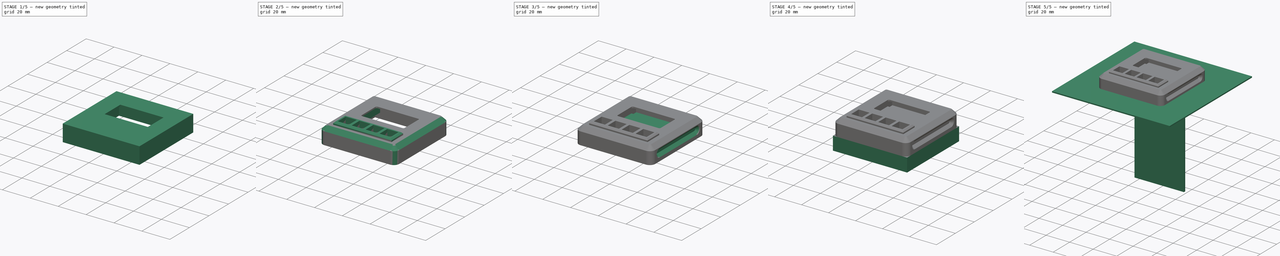
[diagram: build sequence overview — one tinted view per stage of 5, left to right]
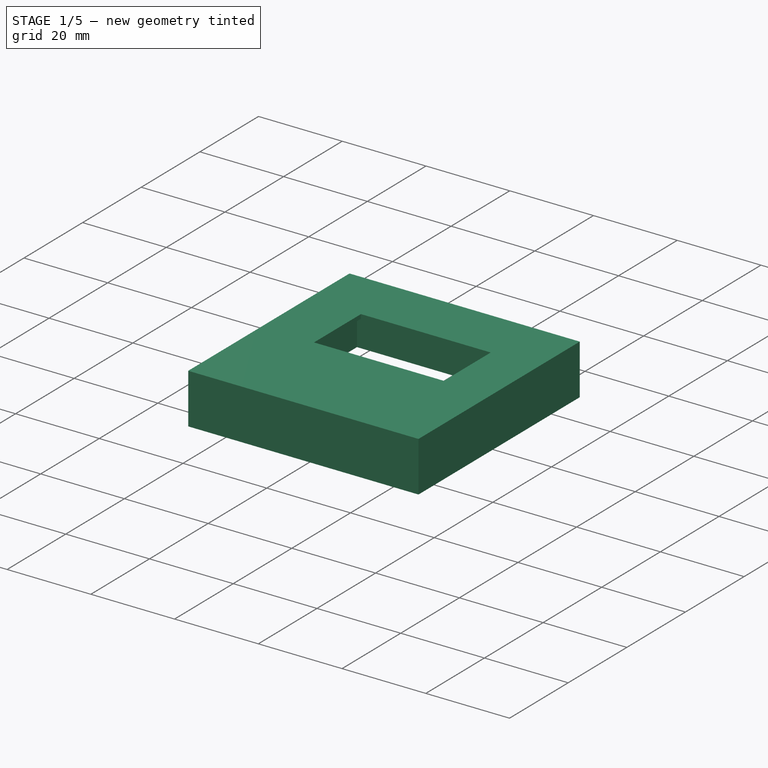
[diagram: stage 1 of 5 — iso view after this stage's code; geometry added in this stage tinted green]
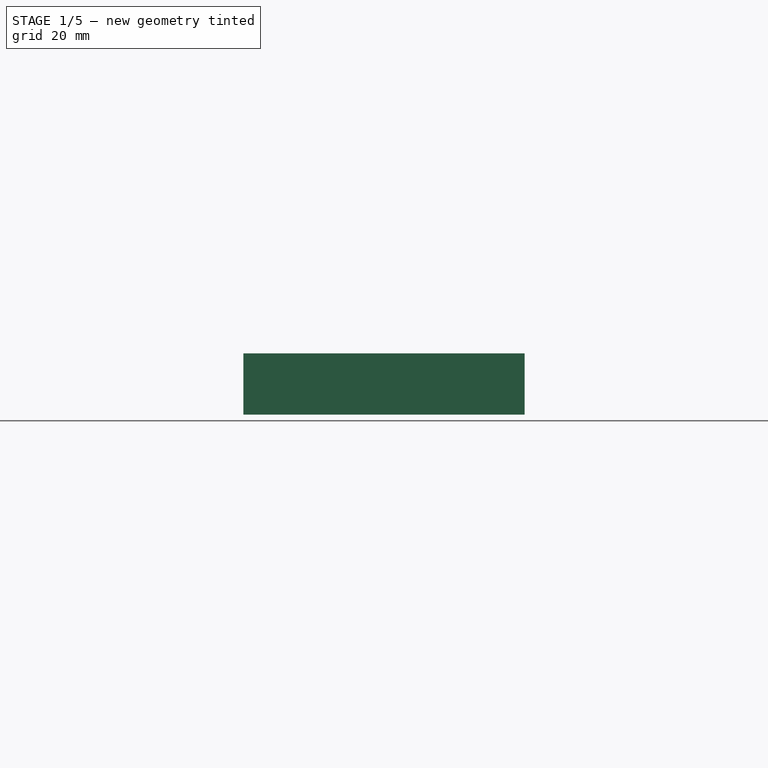
[diagram: stage 1 of 5 — front view after this stage's code; geometry added in this stage tinted green]
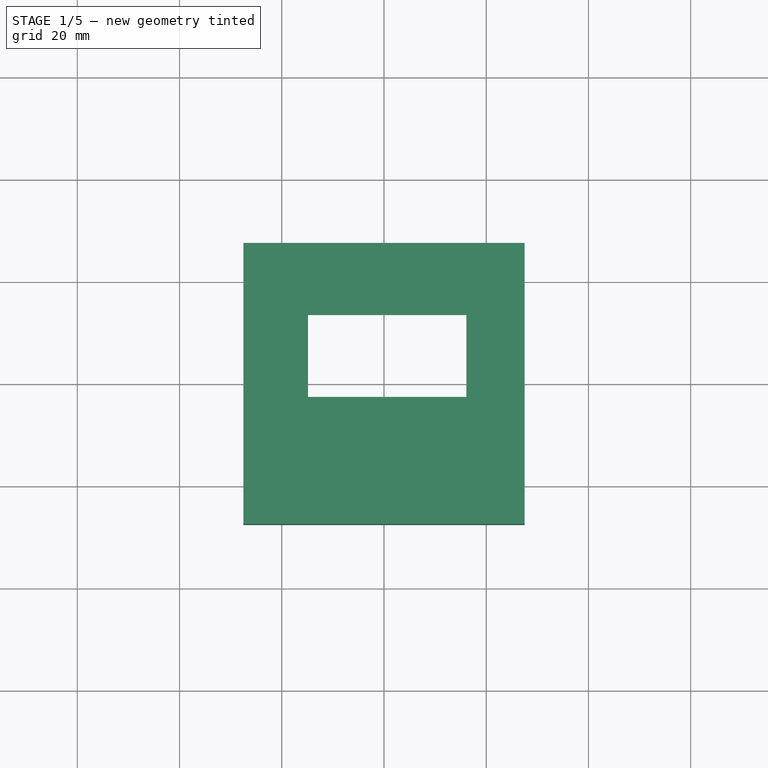
[diagram: stage 1 of 5 — top view after this stage's code; geometry added in this stage tinted green]
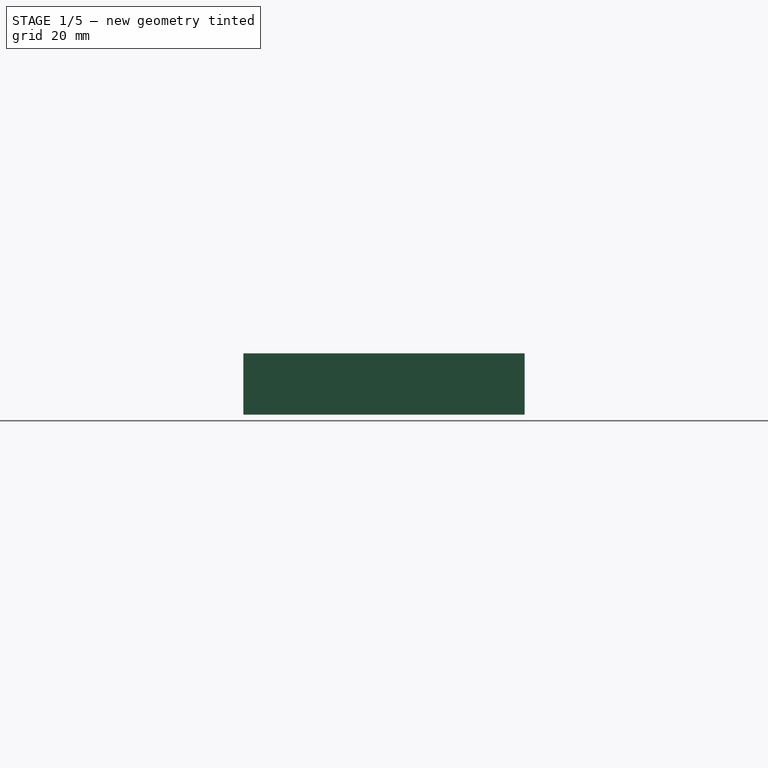
[diagram: stage 1 of 5 — right view after this stage's code; geometry added in this stage tinted green]
FCSTD DOCUMENT  (FreeCAD 0.18R15353 (Git))
Label: jpc1000
License: All rights reserved
LicenseURL: http://en.wikipedia.org/wiki/All_rights_reserved
objects: Sketcher::SketchObject×37, PartDesign::Pocket×19, PartDesign::Pad×18, PartDesign::Body×8, PartDesign::Fillet×6, PartDesign::Chamfer×4, Part::Part2DObjectPython×1, Part::Extrusion×1, PartDesign::FeatureBase×1, PartDesign::Mirrored×1
note: 133 computed .brp shape members not serialized (recipe doc carries the construction recipe); baked Part::Feature solids carry a one-line shape summary decoded from their .brp

FEATURE [PartDesign::Body] Body006  label="frontpanelclamp"
  Group = -> [Sketch030,Pad015,Sketch031,Pocket015]
  Origin = -> Origin006
  Placement = pos=(0,0,2) rot=(0,0,1;0rad)
  Tip = -> Pocket015
FEATURE [Part::Part2DObjectPython] ShapeString  # Draft 2D object (typed FeaturePython)
  FontFile = <path>
  Placement = pos=(4,18,14) rot=(0,0,1;0rad)
  Size = 3
  String = JPC-1000
  Tracking = 0
FEATURE [Part::Extrusion] Extrude  label="frontcase-text"
  Base = -> ShapeString
  Dir = (0,0,1)
  DirMode = 2
  FaceMakerClass = Part::FaceMakerBullseye
  LengthFwd = 0.4
  LengthRev = 0
  Placement = pos=(0,0,0.1) rot=(0,0,1;0rad)
  Solid = false
  Symmetric = false
FEATURE [PartDesign::FeatureBase] BaseFeature
  BaseFeature = -> Extrude
FEATURE [PartDesign::Pad] Pad011  label="body"
  BaseFeature = -> BaseFeature
  Length = 12
  Length2 = 100
  Profile = -> Sketch020
  Type = 0
FEATURE [Sketcher::SketchObject] Sketch021
  MapMode = 5
  Placement = pos=(0,0,0) rot=(1,0,0;3.14159rad)
  Support = -> [Pad011]
  sketch-geometry (4):
    g0: LineSegment StartX=-21.5 StartY=21.5 StartZ=0 EndX=21.5 EndY=21.5 EndZ=0
    g1: LineSegment StartX=21.5 StartY=21.5 StartZ=0 EndX=21.5 EndY=-21.5 EndZ=0
    g2: LineSegment StartX=21.5 StartY=-21.5 StartZ=0 EndX=-21.5 EndY=-21.5 EndZ=0
    g3: LineSegment StartX=-21.5 StartY=-21.5 StartZ=0 EndX=-21.5 EndY=21.5 EndZ=0
  constraints (11):
    c: Coincident(g0,g1)
    c: Coincident(g1,g2)
    c: Coincident(g2,g3)
    c: Coincident(g3,g0)
    c: Horizontal(g0)
    c: Horizontal(g2)
    c: Vertical(g1)
    c: Vertical(g3)
    c: Symmetric(g1,g0,g-1)
    c: Equal(g3,g0)
    c: DistanceX(g0,g0) = 43
FEATURE [PartDesign::Pocket] Pocket009  label="hollow"
  BaseFeature = -> Pad011
  Length = 10
  Length2 = 100
  Profile = -> Sketch021
  Type = 0
FEATURE [Sketcher::SketchObject] Sketch022
  MapMode = 5
  Placement = pos=(0,0,12) rot=(0,0,1;0rad)
  Support = -> [Pocket009]
  sketch-geometry (4):
    g0: LineSegment StartX=-14.8783 StartY=13.3784 StartZ=0 EndX=16.1217 EndY=13.3784 EndZ=0
    g1: LineSegment StartX=16.1217 StartY=13.3784 StartZ=0 EndX=16.1217 EndY=-2.62157 EndZ=0
    g2: LineSegment StartX=16.1217 StartY=-2.62157 StartZ=0 EndX=-14.8783 EndY=-2.62157 EndZ=0
    g3: LineSegment StartX=-14.8783 StartY=-2.62157 StartZ=0 EndX=-14.8783 EndY=13.3784 EndZ=0
  constraints (10):
    c: Coincident(g0,g1)
    c: Coincident(g1,g2)
    c: Coincident(g2,g3)
    c: Coincident(g3,g0)
    c: Horizontal(g0)
    c: Horizontal(g2)
    c: Vertical(g1)
    c: Vertical(g3)
    c: DistanceY(g3,g3) = 16
    c: DistanceX(g0,g0) = 31
FEATURE [PartDesign::Pocket] Pocket010  label="window"
  BaseFeature = -> Pocket009
  Length = 5
  Length2 = 100
  Profile = -> Sketch022
  Type = 1
FEATURE [Sketcher::SketchObject] Sketch023
  ExternalGeometry = -> [Pocket010]
  MapMode = 5
  Placement = pos=(0,0,10) rot=(1,0,0;3.14159rad)
  Support = -> [Pocket010]
  sketch-geometry (4):
    g0: LineSegment StartX=-17.8783 StartY=5.62157 StartZ=0 EndX=19.1217 EndY=5.62157 EndZ=0
    g1: LineSegment StartX=19.1217 StartY=5.62157 StartZ=0 EndX=19.1217 EndY=-16.3784 EndZ=0
    g2: LineSegment StartX=19.1217 StartY=-16.3784 StartZ=0 EndX=-17.8783 EndY=-16.3784 EndZ=0
    g3: LineSegment StartX=-17.8783 StartY=-16.3784 StartZ=0 EndX=-17.8783 EndY=5.62157 EndZ=0
  constraints (12):
    c: Coincident(g0,g1)
    c: Coincident(g1,g2)
    c: Coincident(g2,g3)
    c: Coincident(g3,g0)
    c: Horizontal(g0)
    c: Horizontal(g2)
    c: Vertical(g1)
    c: Vertical(g3)
    c: DistanceY(g-3,g0) = 3
    c: DistanceX(g0,g-3) = 3
    c: DistanceX(g-4,g0) = 3
    c: DistanceY(g2,g-3) = 3
FEATURE [PartDesign::Pocket] Pocket011  label="glasspocket"
  BaseFeature = -> Pocket010
  Length = 1
  Length2 = 100
  Profile = -> Sketch023
  Type = 0
FEATURE [PartDesign::Body] Body005  label="frontcase"
  BaseFeature = -> Extrude
  Group = -> [BaseFeature,Sketch020,Pad011,Sketch021,Pocket009,Sketch022,Pocket010,Sketch023,Pocket011,Sketch024,Pad012,Sketch025,Pocket012,Sketch026,Pad013,Fillet004,Chamfer001,Chamfer002,Fillet005,Sketch027,Pocket013,Sketch028,Pad014,Sketch029,Pocket014,ShapeString,Sketch032,Pocket016,Mirrored,Chamfer003]
  Origin = -> Origin005
  Placement = pos=(0,0,2) rot=(0,0,1;0rad)
  Tip = -> Chamfer003
FEATURE [Sketcher::SketchObject] Sketch033
  MapMode = 5
  Support = -> [XY_Plane007]
  sketch-geometry (4):
    g0: LineSegment StartX=-18.5 StartY=-12.8 StartZ=0 EndX=18.5 EndY=-12.8 EndZ=0
    g1: LineSegment StartX=18.5 StartY=-12.8 StartZ=0 EndX=18.5 EndY=-19.8 EndZ=0
    g2: LineSegment StartX=18.5 StartY=-19.8 StartZ=0 EndX=-18.5 EndY=-19.8 EndZ=0
    g3: LineSegment StartX=-18.5 StartY=-19.8 StartZ=0 EndX=-18.5 EndY=-12.8 EndZ=0
  constraints (11):
    c: Coincident(g0,g1)
    c: Coincident(g1,g2)
    c: Coincident(g2,g3)
    c: Coincident(g3,g0)
    c: Horizontal(g2)
    c: Vertical(g1)
    c: Vertical(g3)
    c: Symmetric(g0,g0,g-2)
    c: DistanceX(g0,g0) = 37
    c: DistanceY(g3,g3) = 7
    c: DistanceY(g0,g-1) = 12.8
FEATURE [PartDesign::Pad] Pad016
  Length = 7.5
  Length2 = 100
  Profile = -> Sketch033
  Type = 0
FEATURE [Sketcher::SketchObject] Sketch034
  ExternalGeometry = -> [Pad016]
  MapMode = 5
  Placement = pos=(0,0,7.5) rot=(0,0,1;0rad)
  Support = -> [Pad016]
  sketch-geometry (12):
    g0: LineSegment StartX=-11.5 StartY=-12.8 StartZ=0 EndX=-8.5 EndY=-12.8 EndZ=0
    g1: LineSegment StartX=-8.5 StartY=-12.8 StartZ=0 EndX=-8.5 EndY=-19.8 EndZ=0
    g2: LineSegment StartX=-8.5 StartY=-19.8 StartZ=0 EndX=-11.5 EndY=-19.8 EndZ=0
    g3: LineSegment StartX=-11.5 StartY=-19.8 StartZ=0 EndX=-11.5 EndY=-12.8 EndZ=0
    g4: LineSegment StartX=-1.5 StartY=-12.8 StartZ=0 EndX=1.5 EndY=-12.8 EndZ=0
    g5: LineSegment StartX=1.5 StartY=-12.8 StartZ=0 EndX=1.5 EndY=-19.8 EndZ=0
    g6: LineSegment StartX=1.5 StartY=-19.8 StartZ=0 EndX=-1.5 EndY=-19.8 EndZ=0
    g7: LineSegment StartX=-1.5 StartY=-19.8 StartZ=0 EndX=-1.5 EndY=-12.8 EndZ=0
    g8: LineSegment StartX=8.5 StartY=-12.8 StartZ=0 EndX=11.5 EndY=-12.8 EndZ=0
    g9: LineSegment StartX=11.5 StartY=-12.8 StartZ=0 EndX=11.5 EndY=-19.8 EndZ=0
    g10: LineSegment StartX=11.5 StartY=-19.8 StartZ=0 EndX=8.5 EndY=-19.8 EndZ=0
    g11: LineSegment StartX=8.5 StartY=-19.8 StartZ=0 EndX=8.5 EndY=-12.8 EndZ=0
  constraints (34):
    c: Coincident(g0,g1)
    c: Coincident(g1,g2)
    c: Coincident(g2,g3)
    c: Coincident(g3,g0)
    c: Horizontal(g0)
    c: Horizontal(g2)
    c: Vertical(g1)
    c: Vertical(g3)
    c: PointOnObject(g0,g-3)
    c: PointOnObject(g1,g-4)
    c: Coincident(g4,g5)
    c: Coincident(g5,g6)
    c: Coincident(g6,g7)
    c: Coincident(g7,g4)
    c: Horizontal(g4)
    c: Horizontal(g6)
    c: Vertical(g5)
    c: Vertical(g7)
    c: PointOnObject(g4,g-3)
    c: PointOnObject(g5,g-4)
    c: Coincident(g8,g9)
    c: Coincident(g9,g10)
    c: Coincident(g10,g11)
    c: Coincident(g11,g8)
    c: Horizontal(g10)
    c: Vertical(g9)
    c: Vertical(g11)
    c: PointOnObject(g9,g-4)
    c: Symmetric(g0,g8,g-2)
    c: DistanceX(g-3,g0) = 7
    c: DistanceX(g0,g4) = 7
    c: DistanceX(g4,g8) = 7
    c: Symmetric(g0,g8,g-2)
    c: Equal(g0,g4)
FEATURE [PartDesign::Pocket] Pocket017
  BaseFeature = -> Pad016
  Length = 7
  Length2 = 100
  Profile = -> Sketch034
  Type = 0
FEATURE [Sketcher::SketchObject] Sketch035
  ExternalGeometry = -> [Pocket017]
  MapMode = 5
  Placement = pos=(0,0,0.5) rot=(0,0,1;0rad)
  Support = -> [Pocket017]
  sketch-geometry (12):
    g0: LineSegment StartX=-11.5 StartY=-13.4 StartZ=0 EndX=-8.5 EndY=-13.4 EndZ=0
    g1: LineSegment StartX=-8.5 StartY=-13.4 StartZ=0 EndX=-8.5 EndY=-19.2 EndZ=0
    g2: LineSegment StartX=-8.5 StartY=-19.2 StartZ=0 EndX=-11.5 EndY=-19.2 EndZ=0
    g3: LineSegment StartX=-11.5 StartY=-19.2 StartZ=0 EndX=-11.5 EndY=-13.4 EndZ=0
    g4: LineSegment StartX=-1.5 StartY=-13.4 StartZ=0 EndX=1.5 EndY=-13.4 EndZ=0
    g5: LineSegment StartX=1.5 StartY=-13.4 StartZ=0 EndX=1.5 EndY=-19.2 EndZ=0
    g6: LineSegment StartX=1.5 StartY=-19.2 StartZ=0 EndX=-1.5 EndY=-19.2 EndZ=0
    g7: LineSegment StartX=-1.5 StartY=-19.2 StartZ=0 EndX=-1.5 EndY=-13.4 EndZ=0
    g8: LineSegment StartX=8.5 StartY=-13.4 StartZ=0 EndX=11.5 EndY=-13.4 EndZ=0
    g9: LineSegment StartX=11.5 StartY=-13.4 StartZ=0 EndX=11.5 EndY=-19.2 EndZ=0
    g10: LineSegment StartX=11.5 StartY=-19.2 StartZ=0 EndX=8.5 EndY=-19.2 EndZ=0
    g11: LineSegment StartX=8.5 StartY=-19.2 StartZ=0 EndX=8.5 EndY=-13.4 EndZ=0
  constraints (34):
    c: Coincident(g0,g1)
    c: Coincident(g1,g2)
    c: Coincident(g2,g3)
    c: Coincident(g3,g0)
    c: Horizontal(g0)
    c: Horizontal(g2)
    c: Vertical(g1)
    c: Vertical(g3)
    c: PointOnObject(g0,g-7)
    c: PointOnObject(g1,g-8)
    c: Coincident(g4,g5)
    c: Coincident(g5,g6)
    c: Coincident(g6,g7)
    c: Coincident(g7,g4)
    c: Horizontal(g4)
    c: Horizontal(g6)
    c: Vertical(g5)
    c: Vertical(g7)
    c: PointOnObject(g4,g-6)
    c: PointOnObject(g5,g-5)
    c: Coincident(g8,g9)
    c: Coincident(g9,g10)
    c: Coincident(g10,g11)
    c: Coincident(g11,g8)
    c: Horizontal(g8)
    c: Horizontal(g10)
    c: Vertical(g11)
    c: PointOnObject(g8,g-4)
    c: Symmetric(g2,g9,g-2)
    c: Symmetric(g0,g8,g-2)
    c: DistanceY(g0,g-7) = 0.6
    c: DistanceY(g-7,g2) = 0.6
    c: DistanceY(g4,g-6) = 0.6
    c: Equal(g7,g3)
FEATURE [PartDesign::Pocket] Pocket018
  BaseFeature = -> Pocket017
  Length = 5
  Length2 = 100
  Profile = -> Sketch035
  Type = 1
FEATURE [Sketcher::SketchObject] Sketch036
  ExternalGeometry = -> [Pocket018]
  MapMode = 5
  Placement = pos=(0,0,7.5) rot=(0,0,1;0rad)
  Support = -> [Pocket018]
  sketch-geometry (39):
    g0: LineSegment StartX=-17.8284 StartY=-15.2393 StartZ=0 EndX=-15 EndY=-18.0678 EndZ=0
    g1: LineSegment StartX=-15 StartY=-18.0678 StartZ=0 EndX=-12.1716 EndY=-15.2393 EndZ=0
    g2: LineSegment StartX=-12.1716 StartY=-15.2393 StartZ=0 EndX=-12.8787 EndY=-14.5322 EndZ=0
    g3: LineSegment StartX=-12.8787 StartY=-14.5322 StartZ=0 EndX=-15 EndY=-16.6536 EndZ=0
    g4: LineSegment StartX=-15 StartY=-16.6536 StartZ=0 EndX=-17.1213 EndY=-14.5322 EndZ=0
    g5: LineSegment StartX=-17.1213 StartY=-14.5322 StartZ=0 EndX=-17.8284 EndY=-15.2393 EndZ=0
    g6: LineSegment StartX=-7.82843 StartY=-17.3607 StartZ=0 EndX=-5 EndY=-14.5322 EndZ=0
    g7: LineSegment StartX=-5 StartY=-14.5322 StartZ=0 EndX=-2.17157 EndY=-17.3607 EndZ=0
    g8: LineSegment StartX=-2.17157 StartY=-17.3607 StartZ=0 EndX=-2.87868 EndY=-18.0678 EndZ=0
    g9: LineSegment StartX=-2.87868 StartY=-18.0678 StartZ=0 EndX=-5 EndY=-15.9464 EndZ=0
    g10: LineSegment StartX=-5 StartY=-15.9464 StartZ=0 EndX=-7.12132 EndY=-18.0678 EndZ=0
    g11: LineSegment StartX=-7.12132 StartY=-18.0678 StartZ=0 EndX=-7.82843 EndY=-17.3607 EndZ=0
    g12: LineSegment StartX=2.17157 StartY=-16.8303 StartZ=0 EndX=3.93934 EndY=-18.5981 EndZ=0
    g13: LineSegment StartX=3.93934 StartY=-18.5981 StartZ=0 EndX=7.82843 EndY=-14.709 EndZ=0
    g14: LineSegment StartX=7.82843 StartY=-14.709 StartZ=0 EndX=7.12132 EndY=-14.0019 EndZ=0
    g15: LineSegment StartX=7.12132 StartY=-14.0019 StartZ=0 EndX=3.93934 EndY=-17.1839 EndZ=0
    g16: LineSegment StartX=3.93934 StartY=-17.1839 StartZ=0 EndX=2.87868 EndY=-16.1232 EndZ=0
    g17: LineSegment StartX=2.87868 StartY=-16.1232 StartZ=0 EndX=2.17157 EndY=-16.8303 EndZ=0
    g18: LineSegment StartX=12.5251 StartY=-14.5322 StartZ=0 EndX=14.2929 EndY=-16.3 EndZ=0
    g19: LineSegment StartX=14.2929 StartY=-16.3 StartZ=0 EndX=12.5251 EndY=-18.0678 EndZ=0
    g20: LineSegment StartX=12.5251 StartY=-18.0678 StartZ=0 EndX=13.2322 EndY=-18.7749 EndZ=0
    g21: LineSegment StartX=13.2322 StartY=-18.7749 StartZ=0 EndX=15 EndY=-17.0071 EndZ=0
    g22: LineSegment StartX=15 StartY=-17.0071 StartZ=0 EndX=16.7678 EndY=-18.7749 EndZ=0
    g23: LineSegment StartX=16.7678 StartY=-18.7749 StartZ=0 EndX=17.4749 EndY=-18.0678 EndZ=0
    g24: LineSegment StartX=17.4749 StartY=-18.0678 StartZ=0 EndX=15.7071 EndY=-16.3 EndZ=0
    g25: LineSegment StartX=15.7071 StartY=-16.3 StartZ=0 EndX=17.4749 EndY=-14.5322 EndZ=0
    g26: LineSegment StartX=17.4749 StartY=-14.5322 StartZ=0 EndX=16.7678 EndY=-13.8251 EndZ=0
    g27: LineSegment StartX=16.7678 StartY=-13.8251 StartZ=0 EndX=15 EndY=-15.5929 EndZ=0
    g28: LineSegment StartX=15 StartY=-15.5929 StartZ=0 EndX=13.2322 EndY=-13.8251 EndZ=0
    g29: LineSegment StartX=13.2322 StartY=-13.8251 StartZ=0 EndX=12.5251 EndY=-14.5322 EndZ=0
    g30: LineSegment [constr] StartX=-15 StartY=-12.8 StartZ=0 EndX=-15 EndY=-19.8836 EndZ=0
    g31: LineSegment [constr] StartX=-5 StartY=-12.8 StartZ=0 EndX=-5 EndY=-19.7049 EndZ=0
    g32: LineSegment [constr] StartX=15 StartY=-12.8 StartZ=0 EndX=15 EndY=-19.4622 EndZ=0
    g33: GeomPoint X=5 Y=-15.7697 Z=0
    g34: LineSegment [constr] StartX=5 StartY=-12.8 StartZ=0 EndX=5 EndY=-19.5073 EndZ=0
    g35: GeomPoint X=-16.0607 Y=-16.3 Z=0
    g36: LineSegment [constr] StartX=-18.5 StartY=-16.3 StartZ=0 EndX=17.9501 EndY=-16.3 EndZ=0
    g37: GeomPoint X=-6.06066 Y=-16.3 Z=0
    g38: GeomPoint X=5.53033 Y=-16.3 Z=0
  constraints (104):
    c: Coincident(g0,g1)
    c: Coincident(g1,g2)
    c: Coincident(g2,g3)
    c: Coincident(g3,g4)
    c: Coincident(g4,g5)
    c: Coincident(g6,g7)
    c: Coincident(g7,g8)
    c: Coincident(g8,g9)
    c: Coincident(g9,g10)
    c: Coincident(g10,g11)
    c: Coincident(g11,g6)
    c: Coincident(g12,g13)
    c: Coincident(g13,g14)
    c: Coincident(g14,g15)
    c: Coincident(g15,g16)
    c: Coincident(g16,g17)
    c: Coincident(g17,g12)
    c: Coincident(g18,g19)
    c: Coincident(g19,g20)
    c: Coincident(g20,g21)
    c: Coincident(g21,g22)
    c: Coincident(g22,g23)
    c: Coincident(g23,g24)
    c: Coincident(g24,g25)
    c: Coincident(g25,g26)
    c: Coincident(g26,g27)
    c: Coincident(g27,g28)
    c: Coincident(g28,g29)
    c: Coincident(g29,g18)
    c: Coincident(g0,g5)
    c: Perpendicular(g5,g0)
    c: Parallel(g4,g0)
    c: Parallel(g3,g1)
    c: Perpendicular(g3,g4)
    c: Perpendicular(g1,g2)
    c: Equal(g4,g3)
    c: Equal(g0,g1)
    c: Vertical(g3,g0)
    c: Distance(g5) = 1
    c: Distance(g0) = 4
    c: Equal(g6,g1)
    c: Equal(g11,g2)
    c: Perpendicular(g6,g11)
    c: Parallel(g6,g10)
    c: Perpendicular(g10,g9)
    c: Perpendicular(g9,g8)
    c: Parallel(g9,g7)
    c: Vertical(g9,g6)
    c: Equal(g8,g11)
    c: Equal(g7,g6)
    c: Equal(g17,g8)
    c: Equal(g29,g17)
    c: Perpendicular(g17,g16)
    c: Parallel(g12,g16)
    c: Parallel(g15,g13)
    c: Perpendicular(g13,g14)
    c: Equal(g17,g14)
    c: Perpendicular(g18,g29)
    c: Parallel(g18,g28)
    c: Equal(g29,g26)
    c: Equal(g26,g23)
    c: Equal(g23,g20)
    c: Perpendicular(g19,g20)
    c: Perpendicular(g19,g18)
    c: Perpendicular(g22,g21)
    c: Perpendicular(g25,g24)
    c: Parallel(g27,g25)
    c: Parallel(g21,g19)
    c: Equal(g27,g28)
    c: Equal(g28,g18)
    c: Equal(g18,g19)
    c: Equal(g19,g21)
    c: Equal(g21,g22)
    c: Equal(g22,g24)
    c: Equal(g24,g25)
    c: Perpendicular(g25,g26)
    c: Perpendicular(g15,g16)
    c: Distance(g12) = 2.5
    c: Distance(g13) = 5.5
    c: Angle(g13) = 0.785398
    c: Vertical(g27,g21)
    c: Vertical(g30)
    c: Symmetric(g-3,g-4,g30)
    c: PointOnObject(g3,g30)
    c: Vertical(g31)
    c: Symmetric(g-5,g-6,g31)
    c: PointOnObject(g6,g31)
    c: Vertical(g32)
    c: Symmetric(g-9,g-10,g32)
    c: PointOnObject(g27,g32)
    c: Symmetric(g12,g13,g33)
    c: Vertical(g34)
    c: PointOnObject(g33,g34)
    c: Symmetric(g-7,g-8,g34)
    c: Symmetric(g4,g0,g35)
    c: PointOnObject(g35,g36)
    c: Horizontal(g36)
    c: Symmetric(g-3,g-3,g36)
    c: PointOnObject(g18,g36)
    c: Distance(g18) = 2.5
    c: Symmetric(g10,g6,g37)
    c: PointOnObject(g37,g36)
    c: Symmetric(g12,g14,g38)
    c: PointOnObject(g38,g36)
FEATURE [PartDesign::Pad] Pad017
  BaseFeature = -> Pocket018
  Length = 0.4
  Length2 = 100
  Profile = -> Sketch036
  Type = 0
FEATURE [PartDesign::Body] Body007  label="buttons"
  Group = -> [Sketch033,Pad016,Sketch034,Pocket017,Sketch035,Pocket018,Sketch036,Pad017]
  Origin = -> Origin007
  Placement = pos=(0,0,10.5) rot=(0,0,1;0rad)
  Tip = -> Pad017
note: 1 file-system path scrubbed to <path> (originals preserved in the JSON sidecar)
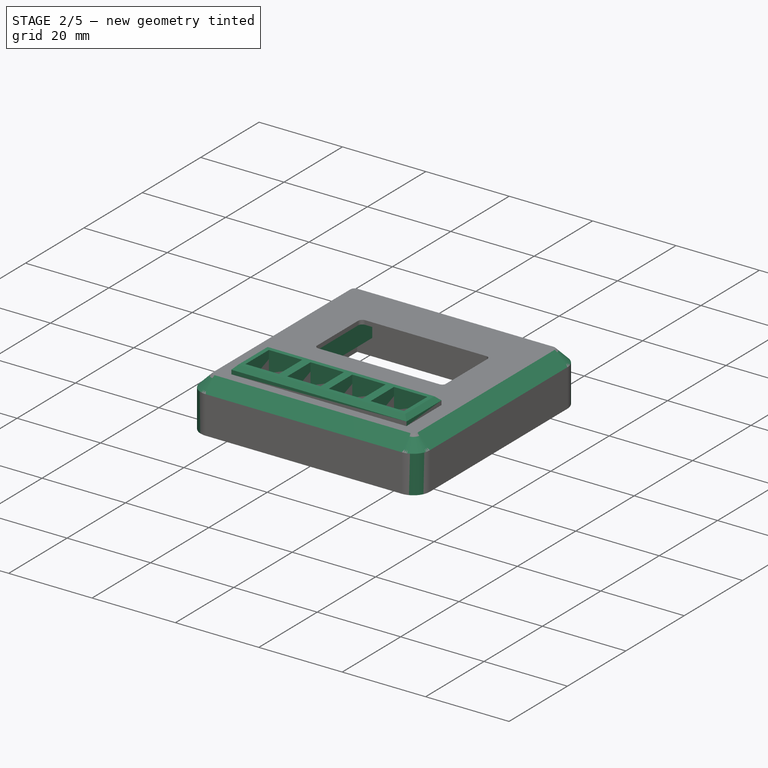
[diagram: stage 2 of 5 — iso view after this stage's code; geometry added in this stage tinted green]
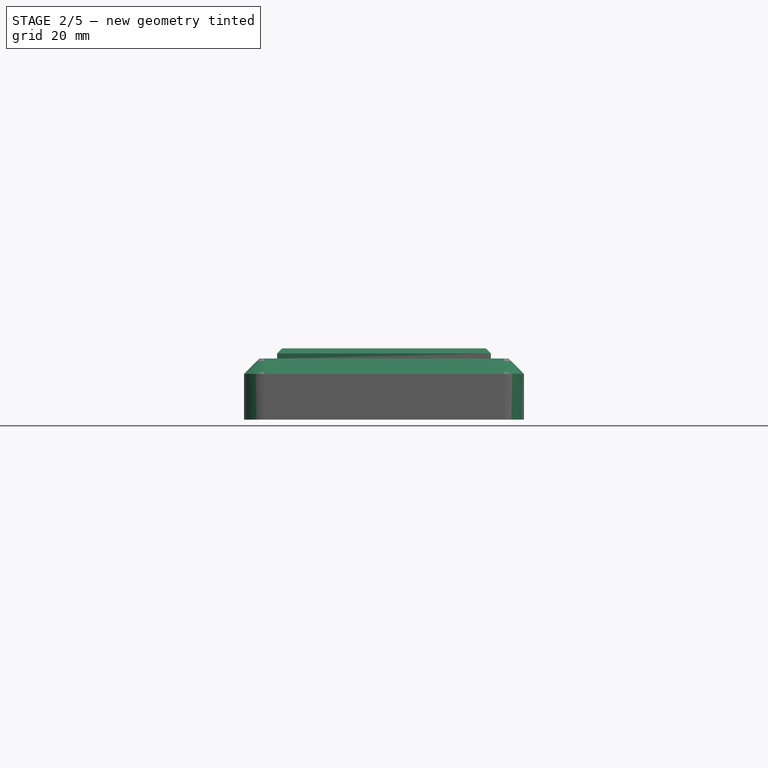
[diagram: stage 2 of 5 — front view after this stage's code; geometry added in this stage tinted green]
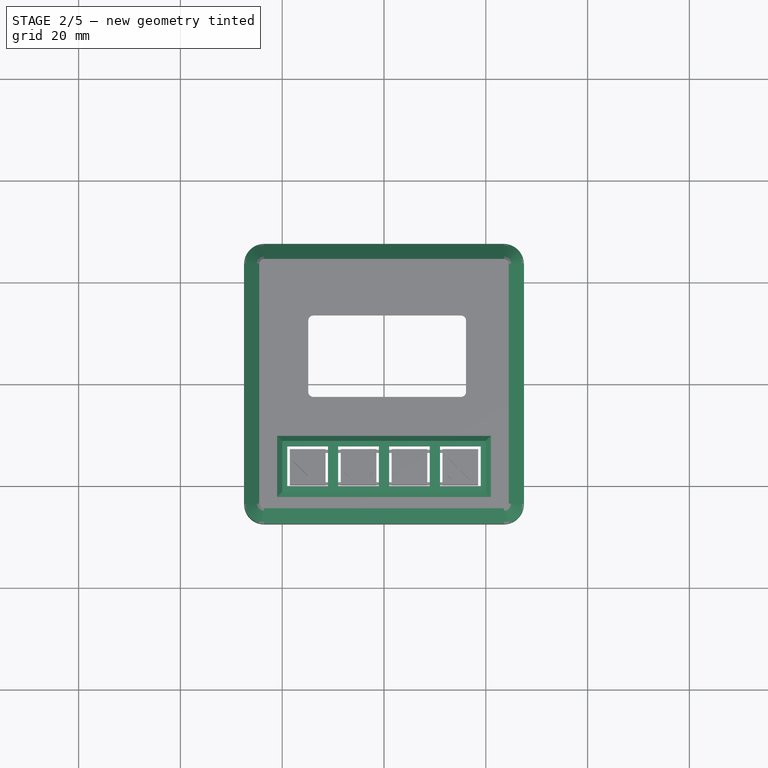
[diagram: stage 2 of 5 — top view after this stage's code; geometry added in this stage tinted green]
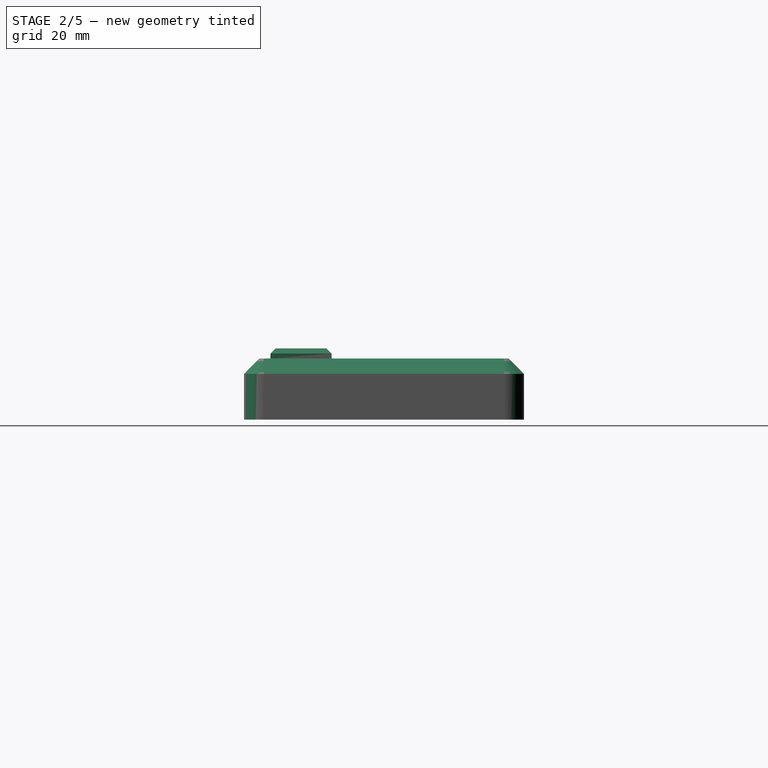
[diagram: stage 2 of 5 — right view after this stage's code; geometry added in this stage tinted green]
FEATURE [Sketcher::SketchObject] Sketch024
  ExternalGeometry = -> [Pocket011]
  MapMode = 5
  Placement = pos=(0,0,10) rot=(1,0,0;3.14159rad)
  Support = -> [Pocket011]
  sketch-geometry (4):
    g0: LineSegment StartX=-21.5 StartY=21.5 StartZ=0 EndX=21.5 EndY=21.5 EndZ=0
    g1: LineSegment StartX=21.5 StartY=21.5 StartZ=0 EndX=21.5 EndY=9.5 EndZ=0
    g2: LineSegment StartX=21.5 StartY=9.5 StartZ=0 EndX=-21.5 EndY=9.5 EndZ=0
    g3: LineSegment StartX=-21.5 StartY=9.5 StartZ=0 EndX=-21.5 EndY=21.5 EndZ=0
  constraints (10):
    c: Coincident(g0,g1)
    c: Coincident(g1,g2)
    c: Coincident(g2,g3)
    c: Coincident(g3,g0)
    c: Horizontal(g2)
    c: Vertical(g1)
    c: Vertical(g3)
    c: Coincident(g0,g-3)
    c: Coincident(g0,g-3)
    c: DistanceY(g3,g3) = 12
FEATURE [PartDesign::Pad] Pad012  label="buttontop"
  BaseFeature = -> Pocket011
  Length = 1
  Length2 = 100
  Profile = -> Sketch024
  Type = 0
FEATURE [Sketcher::SketchObject] Sketch025
  ExternalGeometry = -> [Pad012]
  MapMode = 5
  Placement = pos=(0,0,12) rot=(0,0,1;0rad)
  Support = -> [Pad012]
  sketch-geometry (16):
    g0: LineSegment StartX=-19 StartY=-12.3 StartZ=0 EndX=-11 EndY=-12.3 EndZ=0
    g1: LineSegment StartX=-11 StartY=-12.3 StartZ=0 EndX=-11 EndY=-20.3 EndZ=0
    g2: LineSegment StartX=-11 StartY=-20.3 StartZ=0 EndX=-19 EndY=-20.3 EndZ=0
    g3: LineSegment StartX=-19 StartY=-20.3 StartZ=0 EndX=-19 EndY=-12.3 EndZ=0
    g4: LineSegment StartX=-9 StartY=-12.3 StartZ=0 EndX=-1 EndY=-12.3 EndZ=0
    g5: LineSegment StartX=-1 StartY=-12.3 StartZ=0 EndX=-1 EndY=-20.3 EndZ=0
    g6: LineSegment StartX=-1 StartY=-20.3 StartZ=0 EndX=-9 EndY=-20.3 EndZ=0
    g7: LineSegment StartX=-9 StartY=-20.3 StartZ=0 EndX=-9 EndY=-12.3 EndZ=0
    g8: LineSegment StartX=1 StartY=-12.3 StartZ=0 EndX=9 EndY=-12.3 EndZ=0
    g9: LineSegment StartX=9 StartY=-12.3 StartZ=0 EndX=9 EndY=-20.3 EndZ=0
    g10: LineSegment StartX=9 StartY=-20.3 StartZ=0 EndX=1 EndY=-20.3 EndZ=0
    g11: LineSegment StartX=1 StartY=-20.3 StartZ=0 EndX=1 EndY=-12.3 EndZ=0
    g12: LineSegment StartX=11 StartY=-12.3 StartZ=0 EndX=19 EndY=-12.3 EndZ=0
    g13: LineSegment StartX=19 StartY=-12.3 StartZ=0 EndX=19 EndY=-20.3 EndZ=0
    g14: LineSegment StartX=19 StartY=-20.3 StartZ=0 EndX=11 EndY=-20.3 EndZ=0
    g15: LineSegment StartX=11 StartY=-20.3 StartZ=0 EndX=11 EndY=-12.3 EndZ=0
  constraints (46):
    c: Coincident(g0,g1)
    c: Coincident(g1,g2)
    c: Coincident(g2,g3)
    c: Coincident(g3,g0)
    c: Horizontal(g0)
    c: Horizontal(g2)
    c: Vertical(g1)
    c: Vertical(g3)
    c: Coincident(g4,g5)
    c: Coincident(g5,g6)
    c: Coincident(g6,g7)
    c: Coincident(g7,g4)
    c: Horizontal(g4)
    c: Horizontal(g6)
    c: Vertical(g5)
    c: Vertical(g7)
    c: Coincident(g8,g9)
    c: Coincident(g9,g10)
    c: Coincident(g10,g11)
    c: Coincident(g11,g8)
    c: Horizontal(g8)
    c: Horizontal(g10)
    c: Vertical(g9)
    c: Vertical(g11)
    c: Coincident(g12,g13)
    c: Coincident(g13,g14)
    c: Coincident(g14,g15)
    c: Coincident(g15,g12)
    c: Horizontal(g12)
    c: Horizontal(g14)
    c: Vertical(g13)
    c: Vertical(g15)
    c: Equal(g0,g3)
    c: Equal(g3,g4)
    c: Equal(g4,g8)
    c: Equal(g8,g12)
    c: Equal(g12,g15)
    c: Equal(g15,g11)
    c: Equal(g11,g7)
    c: DistanceX(g0,g4) = 2
    c: DistanceX(g4,g8) = 2
    c: Symmetric(g0,g12,g-2)
    c: Symmetric(g4,g8,g-2)
    c: DistanceY(g0,g4) = 0
    c: DistanceY(g3,g3) = 8
    c: DistanceY(g-3,g2) = 7.2
FEATURE [PartDesign::Pocket] Pocket012  label="buttonholes"
  BaseFeature = -> Pad012
  Length = 5
  Length2 = 100
  Profile = -> Sketch025
  Type = 0
FEATURE [Sketcher::SketchObject] Sketch026
  ExternalGeometry = -> [Pocket012]
  MapMode = 5
  Placement = pos=(0,0,12) rot=(0,0,1;0rad)
  Support = -> [Pocket012]
  sketch-geometry (20):
    g0: LineSegment StartX=-21 StartY=-10.3 StartZ=0 EndX=21 EndY=-10.3 EndZ=0
    g1: LineSegment StartX=21 StartY=-10.3 StartZ=0 EndX=21 EndY=-22.3 EndZ=0
    g2: LineSegment StartX=21 StartY=-22.3 StartZ=0 EndX=-21 EndY=-22.3 EndZ=0
    g3: LineSegment StartX=-21 StartY=-22.3 StartZ=0 EndX=-21 EndY=-10.3 EndZ=0
    g4: LineSegment StartX=-19 StartY=-12.3 StartZ=0 EndX=-11 EndY=-12.3 EndZ=0
    g5: LineSegment StartX=-11 StartY=-12.3 StartZ=0 EndX=-11 EndY=-20.3 EndZ=0
    g6: LineSegment StartX=-11 StartY=-20.3 StartZ=0 EndX=-19 EndY=-20.3 EndZ=0
    g7: LineSegment StartX=-19 StartY=-20.3 StartZ=0 EndX=-19 EndY=-12.3 EndZ=0
    g8: LineSegment StartX=-9 StartY=-12.3 StartZ=0 EndX=-1 EndY=-12.3 EndZ=0
    g9: LineSegment StartX=-1 StartY=-12.3 StartZ=0 EndX=-1 EndY=-20.3 EndZ=0
    g10: LineSegment StartX=-1 StartY=-20.3 StartZ=0 EndX=-9 EndY=-20.3 EndZ=0
    g11: LineSegment StartX=-9 StartY=-20.3 StartZ=0 EndX=-9 EndY=-12.3 EndZ=0
    g12: LineSegment StartX=1 StartY=-12.3 StartZ=0 EndX=9 EndY=-12.3 EndZ=0
    g13: LineSegment StartX=9 StartY=-12.3 StartZ=0 EndX=9 EndY=-20.3 EndZ=0
    g14: LineSegment StartX=9 StartY=-20.3 StartZ=0 EndX=1 EndY=-20.3 EndZ=0
    g15: LineSegment StartX=1 StartY=-20.3 StartZ=0 EndX=1 EndY=-12.3 EndZ=0
    g16: LineSegment StartX=11 StartY=-12.3 StartZ=0 EndX=19 EndY=-12.3 EndZ=0
    g17: LineSegment StartX=19 StartY=-12.3 StartZ=0 EndX=19 EndY=-20.3 EndZ=0
    g18: LineSegment StartX=19 StartY=-20.3 StartZ=0 EndX=11 EndY=-20.3 EndZ=0
    g19: LineSegment StartX=11 StartY=-20.3 StartZ=0 EndX=11 EndY=-12.3 EndZ=0
  constraints (52):
    c: Coincident(g0,g1)
    c: Coincident(g1,g2)
    c: Coincident(g2,g3)
    c: Coincident(g3,g0)
    c: Horizontal(g0)
    c: Horizontal(g2)
    c: Vertical(g1)
    c: Vertical(g3)
    c: Coincident(g4,g5)
    c: Coincident(g5,g6)
    c: Coincident(g6,g7)
    c: Coincident(g7,g4)
    c: Horizontal(g4)
    c: Horizontal(g6)
    c: Vertical(g5)
    c: Vertical(g7)
    c: Coincident(g4,g-3)
    c: Coincident(g5,g-4)
    c: Coincident(g8,g9)
    c: Coincident(g9,g10)
    c: Coincident(g10,g11)
    c: Coincident(g11,g8)
    c: Horizontal(g8)
    c: Horizontal(g10)
    c: Vertical(g9)
    c: Vertical(g11)
    c: Coincident(g8,g-6)
    c: Coincident(g9,g-5)
    c: Coincident(g12,g13)
    c: Coincident(g13,g14)
    c: Coincident(g14,g15)
    c: Coincident(g15,g12)
    c: Horizontal(g12)
    c: Horizontal(g14)
    c: Vertical(g13)
    c: Vertical(g15)
    c: Coincident(g12,g-7)
    c: Coincident(g13,g-8)
    c: Coincident(g16,g17)
    c: Coincident(g17,g18)
    c: Coincident(g18,g19)
    c: Coincident(g19,g16)
    c: Horizontal(g16)
    c: Horizontal(g18)
    c: Vertical(g17)
    c: Vertical(g19)
    c: Coincident(g16,g-10)
    c: Coincident(g17,g-9)
    c: DistanceX(g0,g4) = 2
    c: DistanceY(g4,g0) = 2
    c: DistanceX(g17,g1) = 2
    c: DistanceY(g1,g17) = 2
FEATURE [PartDesign::Pad] Pad013  label="buttonrim"
  BaseFeature = -> Pocket012
  Length = 2
  Length2 = 100
  Profile = -> Sketch026
  Type = 0
FEATURE [PartDesign::Fillet] Fillet004
  Base = -> Pad013 [Edge5,Edge8,Edge1,Edge2]
  BaseFeature = -> Pad013
  Radius = 4
FEATURE [PartDesign::Chamfer] Chamfer001
  Base = -> Fillet004 [Edge24]
  BaseFeature = -> Fillet004
  Size = 3
FEATURE [PartDesign::Chamfer] Chamfer002
  Base = -> Chamfer001 [Edge71,Edge72,Edge67,Edge69]
  BaseFeature = -> Chamfer001
  Size = 1
FEATURE [PartDesign::Fillet] Fillet005
  Base = -> Chamfer002 [Edge67,Edge65,Edge70,Edge69]
  BaseFeature = -> Chamfer002
  Radius = 1
FEATURE [Sketcher::SketchObject] Sketch027
  ExternalGeometry = -> [Fillet005]
  MapMode = 5
  Placement = pos=(0,0,0) rot=(1,0,0;3.14159rad)
  Support = -> [Fillet005]
  sketch-geometry (4):
    g0: LineSegment StartX=-26.5 StartY=7.5 StartZ=0 EndX=26.5 EndY=7.5 EndZ=0
    g1: LineSegment StartX=26.5 StartY=7.5 StartZ=0 EndX=26.5 EndY=-7.5 EndZ=0
    g2: LineSegment StartX=26.5 StartY=-7.5 StartZ=0 EndX=-26.5 EndY=-7.5 EndZ=0
    g3: LineSegment StartX=-26.5 StartY=-7.5 StartZ=0 EndX=-26.5 EndY=7.5 EndZ=0
  constraints (10):
    c: Coincident(g0,g1)
    c: Coincident(g1,g2)
    c: Coincident(g2,g3)
    c: Coincident(g3,g0)
    c: Horizontal(g2)
    c: Vertical(g1)
    c: DistanceY(g1,g1) = 15
    c: Symmetric(g2,g0,g-1)
    c: Symmetric(g0,g0,g-2)
    c: DistanceX(g0,g-3) = 5
FEATURE [PartDesign::Pocket] Pocket013  label="boardclamppocket"
  BaseFeature = -> Fillet005
  Length = 2.6
  Length2 = 100
  Profile = -> Sketch027
  Type = 0
FEATURE [Sketcher::SketchObject] Sketch028
  ExternalGeometry = -> [Pocket013]
  MapMode = 5
  Placement = pos=(0,0,10) rot=(1,0,0;3.14159rad)
  Support = -> [Pocket013]
  sketch-geometry (8):
    g0: LineSegment StartX=-21.5 StartY=9.5 StartZ=0 EndX=-17.8783 EndY=9.5 EndZ=0
    g1: LineSegment StartX=-17.8783 StartY=9.5 StartZ=0 EndX=-17.8783 EndY=-21.5 EndZ=0
    g2: LineSegment StartX=-17.8783 StartY=-21.5 StartZ=0 EndX=-21.5 EndY=-21.5 EndZ=0
    g3: LineSegment StartX=-21.5 StartY=-21.5 StartZ=0 EndX=-21.5 EndY=9.5 EndZ=0
    g4: LineSegment StartX=19.1217 StartY=9.5 StartZ=0 EndX=21.5 EndY=9.5 EndZ=0
    g5: LineSegment StartX=21.5 StartY=9.5 StartZ=0 EndX=21.5 EndY=-21.5 EndZ=0
    g6: LineSegment StartX=21.5 StartY=-21.5 StartZ=0 EndX=19.1217 EndY=-21.5 EndZ=0
    g7: LineSegment StartX=19.1217 StartY=-21.5 StartZ=0 EndX=19.1217 EndY=9.5 EndZ=0
  constraints (24):
    c: Coincident(g0,g1)
    c: Coincident(g1,g2)
    c: Coincident(g2,g3)
    c: Coincident(g3,g0)
    c: Horizontal(g0)
    c: Horizontal(g2)
    c: Vertical(g1)
    c: Vertical(g3)
    c: Coincident(g4,g5)
    c: Coincident(g5,g6)
    c: Coincident(g6,g7)
    c: Coincident(g7,g4)
    c: Horizontal(g4)
    c: Horizontal(g6)
    c: Vertical(g5)
    c: Vertical(g7)
    c: PointOnObject(g0,g-6)
    c: PointOnObject(g0,g-3)
    c: PointOnObject(g4,g-4)
    c: PointOnObject(g4,g-5)
    c: PointOnObject(g0,g-7)
    c: PointOnObject(g4,g-7)
    c: PointOnObject(g1,g-8)
    c: PointOnObject(g6,g-8)
FEATURE [PartDesign::Pad] Pad014  label="boardshoulder"
  BaseFeature = -> Pocket013
  Length = 6
  Length2 = 100
  Profile = -> Sketch028
  Type = 0
FEATURE [Sketcher::SketchObject] Sketch029
  MapMode = 5
  Placement = pos=(0,0,2.6) rot=(1,0,0;3.14159rad)
  Support = -> [Pad014]
  sketch-geometry (2):
    g0: Circle CenterX=-24 CenterY=0 CenterZ=0 NormalX=0 NormalY=0 NormalZ=1 AngleXU=0 Radius=0.8
    g1: Circle CenterX=24 CenterY=0 CenterZ=0 NormalX=0 NormalY=0 NormalZ=1 AngleXU=0 Radius=0.8
  constraints (5):
    c: PointOnObject(g0,g-1)
    c: Equal(g1,g0)
    c: Radius(g0) = 0.8
    c: DistanceX(g0,g1) = 48
    c: Symmetric(g1,g0,g-2)
FEATURE [PartDesign::Pocket] Pocket014
  BaseFeature = -> Pad014
  Length = 5
  Length2 = 100
  Profile = -> Sketch029
  Type = 0
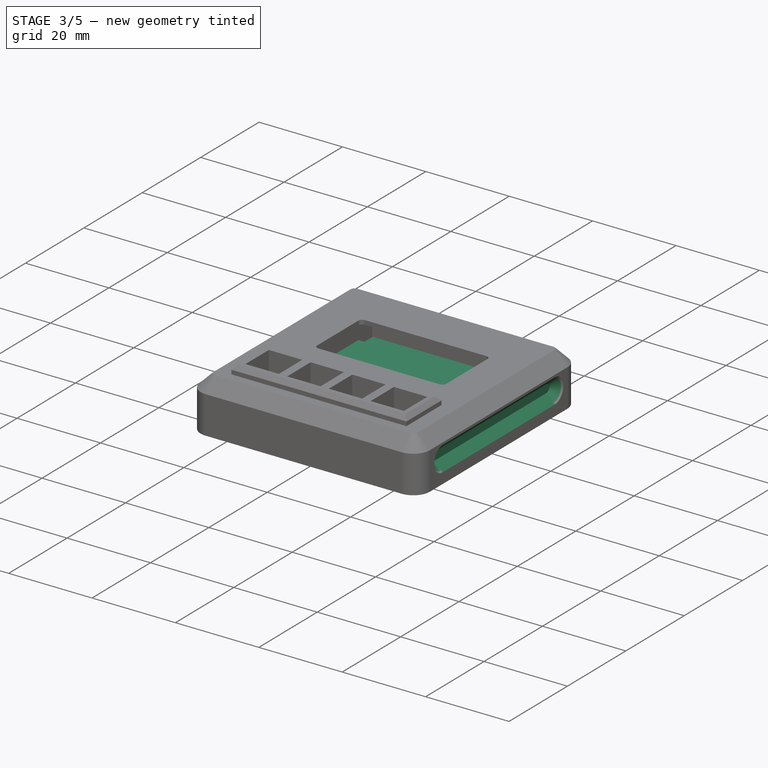
[diagram: stage 3 of 5 — iso view after this stage's code; geometry added in this stage tinted green]
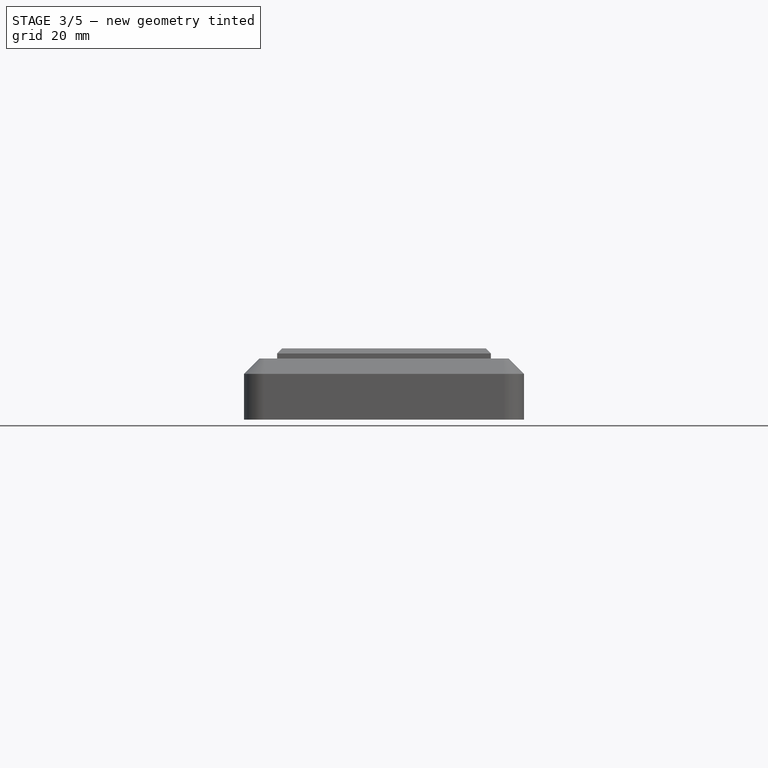
[diagram: stage 3 of 5 — front view after this stage's code; geometry added in this stage tinted green]
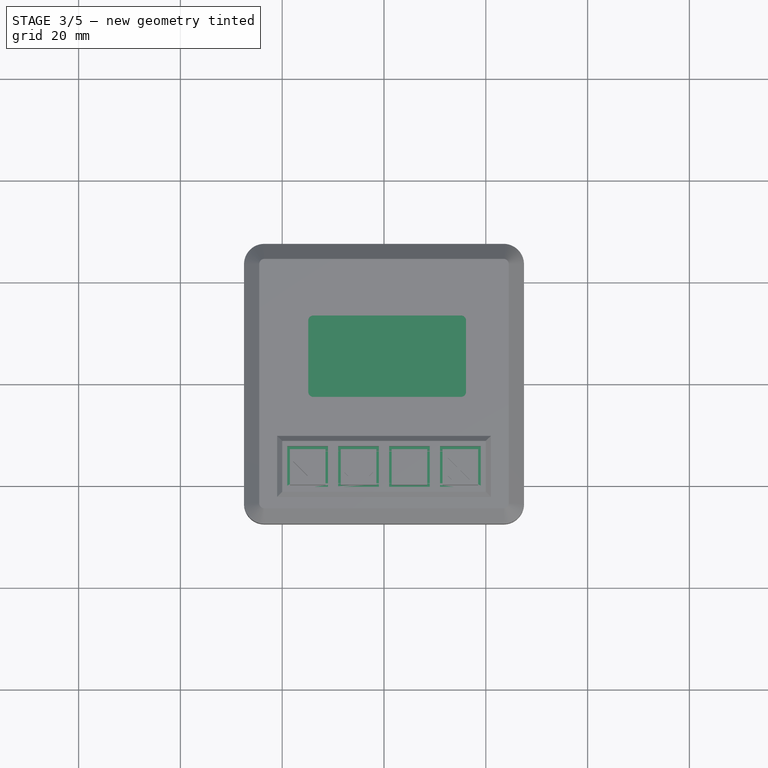
[diagram: stage 3 of 5 — top view after this stage's code; geometry added in this stage tinted green]
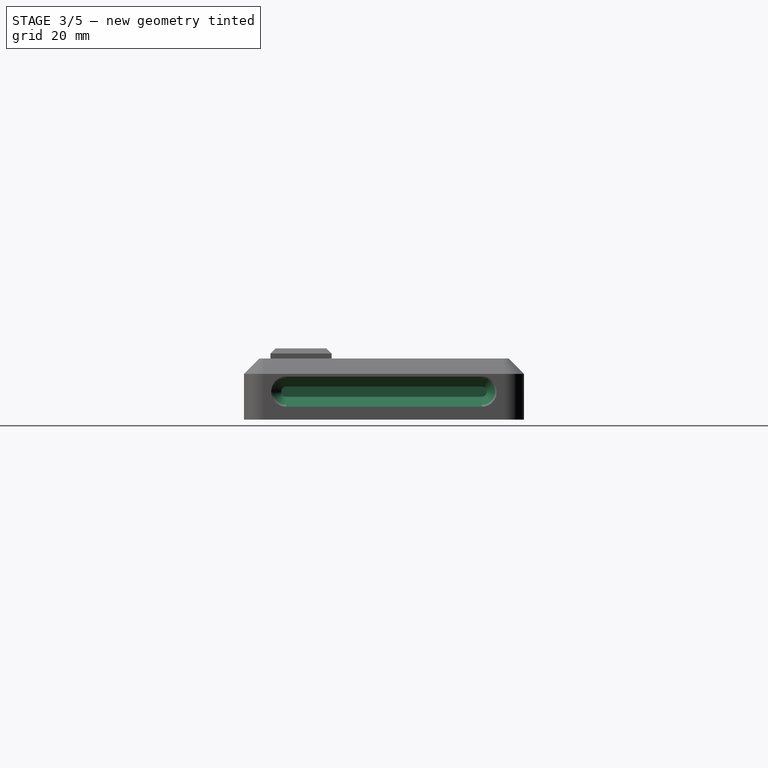
[diagram: stage 3 of 5 — right view after this stage's code; geometry added in this stage tinted green]
FEATURE [PartDesign::Body] Body003  label="mainboardholderclamp"
  Group = -> [Sketch011,Pad004,Sketch012,Pocket007,Sketch013,Pocket008,Fillet002,Fillet003]
  Origin = -> Origin003
  Placement = pos=(0,0,1) rot=(0,0,1;0rad)
  Tip = -> Fillet003
FEATURE [Sketcher::SketchObject] Sketch014
  MapMode = 5
  Support = -> [XY_Plane004]
  sketch-geometry (4):
    g0: LineSegment StartX=-21 StartY=21 StartZ=0 EndX=21 EndY=21 EndZ=0
    g1: LineSegment StartX=21 StartY=21 StartZ=0 EndX=21 EndY=-21 EndZ=0
    g2: LineSegment StartX=21 StartY=-21 StartZ=0 EndX=-21 EndY=-21 EndZ=0
    g3: LineSegment StartX=-21 StartY=-21 StartZ=0 EndX=-21 EndY=21 EndZ=0
  constraints (11):
    c: Coincident(g0,g1)
    c: Coincident(g1,g2)
    c: Coincident(g2,g3)
    c: Coincident(g3,g0)
    c: Horizontal(g0)
    c: Horizontal(g2)
    c: Vertical(g1)
    c: Vertical(g3)
    c: Symmetric(g1,g0,g-1)
    c: DistanceX(g0,g0) = 42
    c: Equal(g3,g0)
FEATURE [PartDesign::Pad] Pad005  label="board"
  Length = 1.6
  Length2 = 100
  Profile = -> Sketch014
  Type = 0
FEATURE [Sketcher::SketchObject] Sketch015
  ExternalGeometry = -> [Pad005]
  MapMode = 5
  Placement = pos=(0,0,1.6) rot=(0,0,1;0rad)
  Support = -> [Pad005]
  sketch-geometry (4):
    g0: LineSegment StartX=-17 StartY=20.4 StartZ=0 EndX=18.35 EndY=20.4 EndZ=0
    g1: LineSegment StartX=18.35 StartY=20.4 StartZ=0 EndX=18.35 EndY=-13.05 EndZ=0
    g2: LineSegment StartX=18.35 StartY=-13.05 StartZ=0 EndX=-17 EndY=-13.05 EndZ=0
    g3: LineSegment StartX=-17 StartY=-13.05 StartZ=0 EndX=-17 EndY=20.4 EndZ=0
  constraints (12):
    c: Coincident(g0,g1)
    c: Coincident(g1,g2)
    c: Coincident(g2,g3)
    c: Coincident(g3,g0)
    c: Horizontal(g0)
    c: Horizontal(g2)
    c: Vertical(g1)
    c: Vertical(g3)
    c: DistanceX(g0,g0) = 35.35
    c: DistanceY(g1,g1) = 33.45
    c: DistanceY(g0,g-3) = 0.6
    c: DistanceX(g-3,g0) = 4
FEATURE [PartDesign::Pad] Pad006  label="displayboard"
  BaseFeature = -> Pad005
  Length = 3.3
  Length2 = 100
  Profile = -> Sketch015
  Type = 0
FEATURE [Sketcher::SketchObject] Sketch016
  ExternalGeometry = -> [Pad006]
  MapMode = 5
  Placement = pos=(0,0,4.9) rot=(0,0,1;0rad)
  Support = -> [Pad006]
  sketch-geometry (5):
    g0: LineSegment StartX=-16.575 StartY=14.9 StartZ=0 EndX=17.925 EndY=14.9 EndZ=0
    g1: LineSegment StartX=17.925 StartY=14.9 StartZ=0 EndX=17.925 EndY=-4.1 EndZ=0
    g2: LineSegment StartX=17.925 StartY=-4.1 StartZ=0 EndX=-16.575 EndY=-4.1 EndZ=0
    g3: LineSegment StartX=-16.575 StartY=-4.1 StartZ=0 EndX=-16.575 EndY=14.9 EndZ=0
    g4: LineSegment [constr] StartX=0.675 StartY=17.4214 StartZ=0 EndX=0.675 EndY=-5.06233 EndZ=0
  constraints (12):
    c: Coincident(g0,g1)
    c: Coincident(g1,g2)
    c: Coincident(g2,g3)
    c: Coincident(g3,g0)
    c: Horizontal(g2)
    c: Vertical(g1)
    c: Vertical(g3)
    c: DistanceX(g0,g0) = 34.5
    c: DistanceY(g1,g1) = 19
    c: Symmetric(g-3,g-4,g4)
    c: Symmetric(g0,g0,g4)
    c: DistanceY(g0,g-3) = 5.5
FEATURE [PartDesign::Pad] Pad007
  BaseFeature = -> Pad006
  Length = 1.5
  Length2 = 100
  Profile = -> Sketch016
  Type = 0
FEATURE [Sketcher::SketchObject] Sketch017
  ExternalGeometry = -> [Pad007]
  MapMode = 5
  Placement = pos=(0,0,1.6) rot=(0,0,1;0rad)
  Support = -> [Pad007]
  sketch-geometry (18):
    g0: LineSegment StartX=-18.15 StartY=-13.15 StartZ=0 EndX=-11.9 EndY=-13.15 EndZ=0
    g1: LineSegment StartX=-11.9 StartY=-13.15 StartZ=0 EndX=-11.9 EndY=-19.4 EndZ=0
    g2: LineSegment StartX=-11.9 StartY=-19.4 StartZ=0 EndX=-18.15 EndY=-19.4 EndZ=0
    g3: LineSegment StartX=-18.15 StartY=-19.4 StartZ=0 EndX=-18.15 EndY=-13.15 EndZ=0
    g4: LineSegment StartX=-8.13333 StartY=-13.15 StartZ=0 EndX=-1.88333 EndY=-13.15 EndZ=0
    g5: LineSegment StartX=-1.88333 StartY=-13.15 StartZ=0 EndX=-1.88333 EndY=-19.4 EndZ=0
    g6: LineSegment StartX=-1.88333 StartY=-19.4 StartZ=0 EndX=-8.13333 EndY=-19.4 EndZ=0
    g7: LineSegment StartX=-8.13333 StartY=-19.4 StartZ=0 EndX=-8.13333 EndY=-13.15 EndZ=0
    g8: LineSegment StartX=1.88333 StartY=-13.15 StartZ=0 EndX=8.13333 EndY=-13.15 EndZ=0
    g9: LineSegment StartX=8.13333 StartY=-13.15 StartZ=0 EndX=8.13333 EndY=-19.4 EndZ=0
    g10: LineSegment StartX=8.13333 StartY=-19.4 StartZ=0 EndX=1.88333 EndY=-19.4 EndZ=0
    g11: LineSegment StartX=1.88333 StartY=-19.4 StartZ=0 EndX=1.88333 EndY=-13.15 EndZ=0
    g12: LineSegment StartX=11.9 StartY=-13.15 StartZ=0 EndX=18.15 EndY=-13.15 EndZ=0
    g13: LineSegment StartX=18.15 StartY=-13.15 StartZ=0 EndX=18.15 EndY=-19.4 EndZ=0
    g14: LineSegment StartX=18.15 StartY=-19.4 StartZ=0 EndX=11.9 EndY=-19.4 EndZ=0
    g15: LineSegment StartX=11.9 StartY=-19.4 StartZ=0 EndX=11.9 EndY=-13.15 EndZ=0
    g16: LineSegment [constr] StartX=-11.9 StartY=-13.15 StartZ=0 EndX=-8.13333 EndY=-13.15 EndZ=0
    g17: LineSegment [constr] StartX=-1.88333 StartY=-13.15 StartZ=0 EndX=1.88333 EndY=-13.15 EndZ=0
  constraints (50):
    c: Coincident(g0,g1)
    c: Coincident(g1,g2)
    c: Coincident(g2,g3)
    c: Coincident(g3,g0)
    c: Horizontal(g0)
    c: Horizontal(g2)
    c: Vertical(g1)
    c: Vertical(g3)
    c: Coincident(g4,g5)
    c: Coincident(g5,g6)
    c: Coincident(g6,g7)
    c: Coincident(g7,g4)
    c: Horizontal(g4)
    c: Horizontal(g6)
    c: Vertical(g5)
    c: Vertical(g7)
    c: Coincident(g8,g9)
    c: Coincident(g9,g10)
    c: Coincident(g10,g11)
    c: Coincident(g11,g8)
    c: Horizontal(g8)
    c: Horizontal(g10)
    c: Vertical(g9)
    c: Vertical(g11)
    c: Coincident(g12,g13)
    c: Coincident(g13,g14)
    c: Coincident(g14,g15)
    c: Coincident(g15,g12)
    c: Horizontal(g12)
    c: Horizontal(g14)
    c: Vertical(g13)
    c: Vertical(g15)
    c: Equal(g8,g12)
    c: Equal(g12,g4)
    c: Equal(g4,g0)
    c: Equal(g3,g7)
    c: Equal(g7,g11)
    c: Equal(g11,g15)
    c: DistanceX(g0,g0) = 6.25
    c: Equal(g3,g0)
    c: DistanceY(g0,g4) = 0
    c: Symmetric(g0,g12,g-2)
    c: Symmetric(g4,g8,g-2)
    c: Coincident(g16,g0)
    c: Coincident(g16,g4)
    c: Coincident(g17,g4)
    c: Coincident(g17,g8)
    c: Equal(g16,g17)
    c: DistanceY(g-3,g2) = 1.6
    c: DistanceX(g-3,g2) = 2.85
FEATURE [PartDesign::Pad] Pad008
  BaseFeature = -> Pad007
  Length = 3.25
  Length2 = 100
  Profile = -> Sketch017
  Type = 0
FEATURE [Sketcher::SketchObject] Sketch018
  ExternalGeometry = -> [Pad008]
  MapMode = 5
  Placement = pos=(0,0,4.85) rot=(0,0,1;0rad)
  Support = -> [Pad008]
  sketch-geometry (4):
    g0: Circle CenterX=-15.025 CenterY=-16.275 CenterZ=0 NormalX=0 NormalY=0 NormalZ=1 AngleXU=0 Radius=1.75
    g1: Circle CenterX=-5.00833 CenterY=-16.275 CenterZ=0 NormalX=0 NormalY=0 NormalZ=1 AngleXU=0 Radius=1.75
    g2: Circle CenterX=5.00833 CenterY=-16.275 CenterZ=0 NormalX=0 NormalY=0 NormalZ=1 AngleXU=0 Radius=1.75
    g3: Circle CenterX=15.025 CenterY=-16.275 CenterZ=0 NormalX=0 NormalY=0 NormalZ=1 AngleXU=0 Radius=1.75
  constraints (8):
    c: Equal(g3,g2)
    c: Equal(g2,g1)
    c: Equal(g1,g0)
    c: Symmetric(g0,g3,g-2)
    c: Symmetric(g1,g2,g-2)
    c: Radius(g0) = 1.75
    c: Symmetric(g-3,g-4,g0)
    c: Symmetric(g-6,g-5,g1)
FEATURE [PartDesign::Pad] Pad009
  BaseFeature = -> Pad008
  Length = 1
  Length2 = 100
  Profile = -> Sketch018
  Type = 0
FEATURE [PartDesign::Body] Body004  label="frontpanelboard"
  Group = -> [Sketch014,Pad005,Sketch015,Pad006,Sketch016,Pad007,Sketch017,Pad008,Sketch018,Pad009,Sketch019,Pad010]
  Origin = -> Origin004
  Placement = pos=(0,0,4.5) rot=(0,0,1;0rad)
  Tip = -> Pad010
FEATURE [Sketcher::SketchObject] Sketch020
  MapMode = 5
  Support = -> [XY_Plane005]
  sketch-geometry (4):
    g0: LineSegment StartX=-27.5 StartY=27.5 StartZ=0 EndX=27.5 EndY=27.5 EndZ=0
    g1: LineSegment StartX=27.5 StartY=27.5 StartZ=0 EndX=27.5 EndY=-27.5 EndZ=0
    g2: LineSegment StartX=27.5 StartY=-27.5 StartZ=0 EndX=-27.5 EndY=-27.5 EndZ=0
    g3: LineSegment StartX=-27.5 StartY=-27.5 StartZ=0 EndX=-27.5 EndY=27.5 EndZ=0
  constraints (11):
    c: Coincident(g0,g1)
    c: Coincident(g1,g2)
    c: Coincident(g2,g3)
    c: Coincident(g3,g0)
    c: Horizontal(g0)
    c: Horizontal(g2)
    c: Vertical(g1)
    c: Vertical(g3)
    c: Symmetric(g0,g1,g-1)
    c: Equal(g0,g3)
    c: DistanceX(g0,g0) = 55
FEATURE [Sketcher::SketchObject] Sketch030
  MapMode = 5
  Support = -> [XY_Plane006]
  sketch-geometry (4):
    g0: LineSegment StartX=-26 StartY=7.3 StartZ=0 EndX=26 EndY=7.3 EndZ=0
    g1: LineSegment StartX=26 StartY=7.3 StartZ=0 EndX=26 EndY=-7.3 EndZ=0
    g2: LineSegment StartX=26 StartY=-7.3 StartZ=0 EndX=-26 EndY=-7.3 EndZ=0
    g3: LineSegment StartX=-26 StartY=-7.3 StartZ=0 EndX=-26 EndY=7.3 EndZ=0
  constraints (11):
    c: Coincident(g0,g1)
    c: Coincident(g1,g2)
    c: Coincident(g2,g3)
    c: Coincident(g3,g0)
    c: Horizontal(g0)
    c: Horizontal(g2)
    c: Vertical(g1)
    c: Vertical(g3)
    c: Symmetric(g1,g0,g-1)
    c: DistanceY(g1,g1) = 14.6
    c: DistanceX(g2,g2) = 52
FEATURE [PartDesign::Pad] Pad015
  Length = 2
  Length2 = 100
  Profile = -> Sketch030
  Type = 0
FEATURE [Sketcher::SketchObject] Sketch031
  MapMode = 5
  Placement = pos=(0,0,0) rot=(1,0,0;3.14159rad)
  Support = -> [Pad015]
  sketch-geometry (2):
    g0: Circle CenterX=-24 CenterY=0 CenterZ=0 NormalX=0 NormalY=0 NormalZ=1 AngleXU=0 Radius=1.2
    g1: Circle CenterX=24 CenterY=0 CenterZ=0 NormalX=0 NormalY=0 NormalZ=1 AngleXU=0 Radius=1.2
  constraints (5):
    c: PointOnObject(g0,g-1)
    c: Radius(g1) = 1.2
    c: Equal(g1,g0)
    c: DistanceX(g0,g1) = 48
    c: Symmetric(g0,g1,g-2)
FEATURE [PartDesign::Pocket] Pocket015
  BaseFeature = -> Pad015
  Length = 5
  Length2 = 100
  Profile = -> Sketch031
  Type = 0
FEATURE [Sketcher::SketchObject] Sketch032
  MapMode = 5
  Placement = pos=(-27.5,0,0) rot=(0.57735,-0.57735,-0.57735;2.0944rad)
  Support = -> [Pocket014]
  sketch-geometry (4):
    g0: ArcOfCircle CenterX=-19.1929 CenterY=5.5 CenterZ=0 NormalX=0 NormalY=0 NormalZ=1 AngleXU=0 Radius=1 StartAngle=1.5708 EndAngle=4.71239
    g1: ArcOfCircle CenterX=19.1929 CenterY=5.5 CenterZ=0 NormalX=0 NormalY=0 NormalZ=1 AngleXU=0 Radius=1 StartAngle=4.71239 EndAngle=7.85398
    g2: LineSegment StartX=-19.1929 StartY=4.5 StartZ=0 EndX=19.1929 EndY=4.5 EndZ=0
    g3: LineSegment StartX=-19.1929 StartY=6.5 StartZ=0 EndX=19.1929 EndY=6.5 EndZ=0
  constraints (8):
    c: Tangent(g0,g3) = 1.5708
    c: Tangent(g0,g2) = -1.5708
    c: Tangent(g2,g1) = -1.5708
    c: Tangent(g3,g1) = 1.5708
    c: Horizontal(g2)
    c: Symmetric(g0,g1,g-2)
    c: Radius(g0) = 1
    c: DistanceY(g-1,g0) = 5.5
FEATURE [PartDesign::Pocket] Pocket016
  BaseFeature = -> Pocket014
  Length = 2
  Length2 = 100
  Profile = -> Sketch032
  Type = 0
FEATURE [PartDesign::Mirrored] Mirrored
  BaseFeature = -> Pocket016
  MirrorPlane = -> YZ_Plane005
  Originals = -> [Pocket016]
FEATURE [PartDesign::Chamfer] Chamfer003
  Base = -> Mirrored [Edge81,Edge76]
  BaseFeature = -> Mirrored
  Size = 1.95
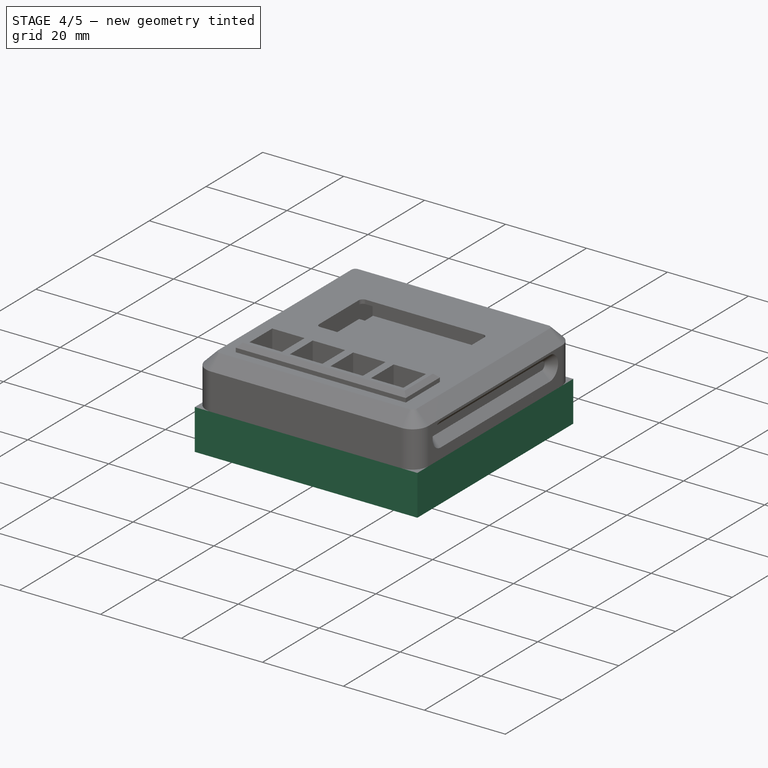
[diagram: stage 4 of 5 — iso view after this stage's code; geometry added in this stage tinted green]
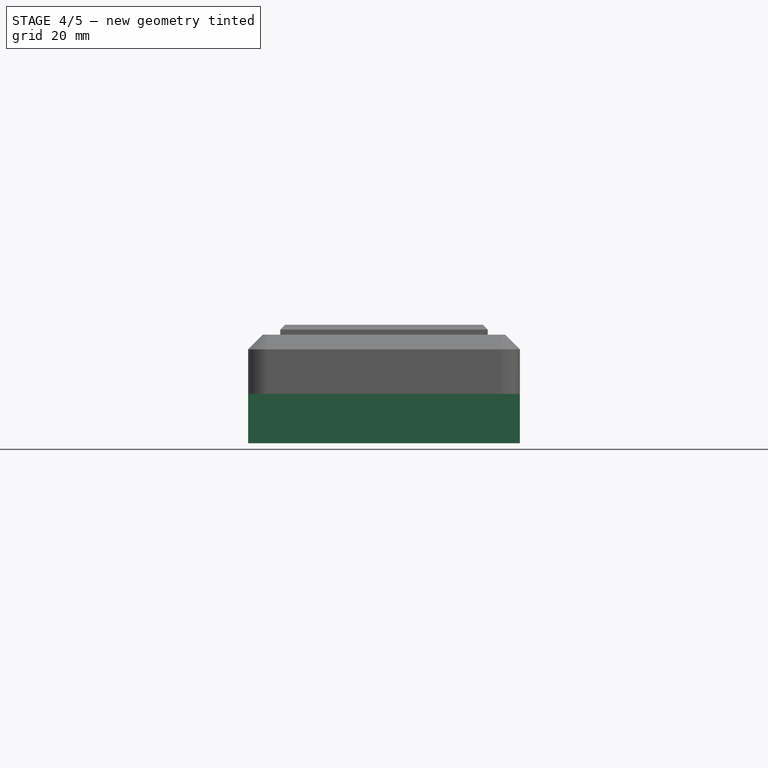
[diagram: stage 4 of 5 — front view after this stage's code; geometry added in this stage tinted green]
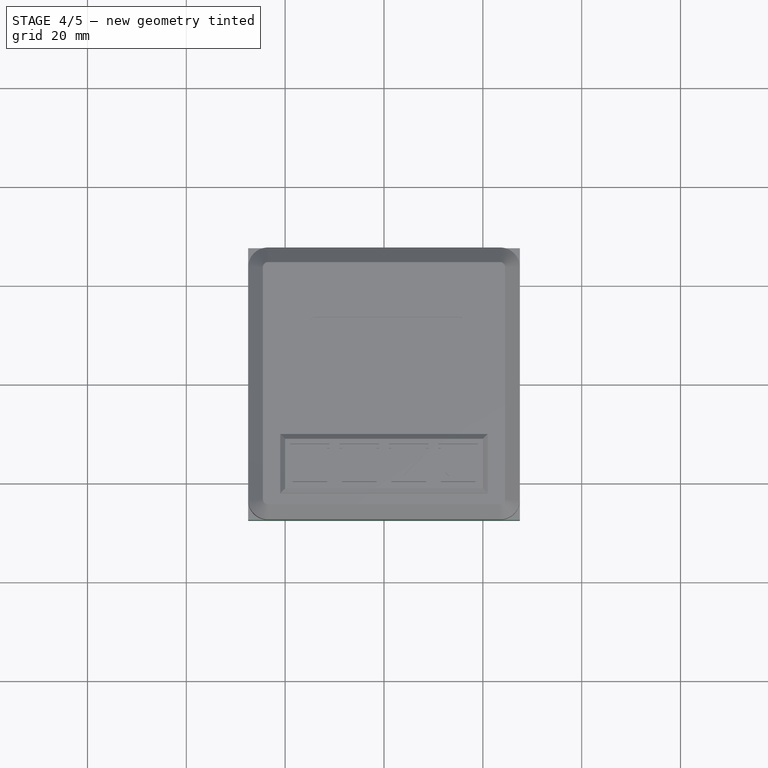
[diagram: stage 4 of 5 — top view after this stage's code; geometry added in this stage tinted green]
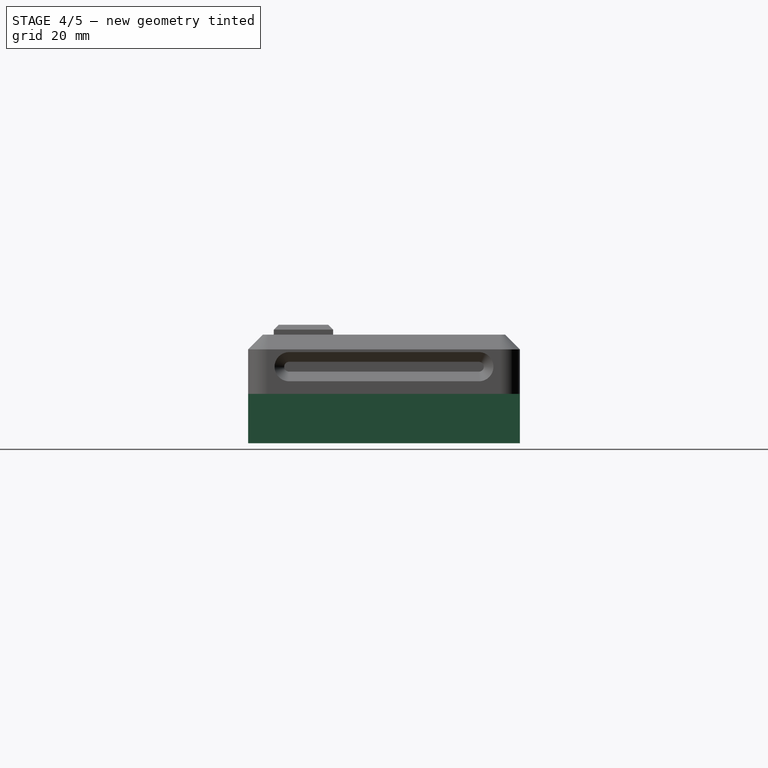
[diagram: stage 4 of 5 — right view after this stage's code; geometry added in this stage tinted green]
FEATURE [PartDesign::Body] Body001  label="mainboard"
  Group = -> [Sketch002,Pad001,Sketch003,Pocket001]
  Origin = -> Origin001
  Tip = -> Pocket001
FEATURE [Sketcher::SketchObject] Sketch004
  MapMode = 5
  Support = -> [XY_Plane002]
  sketch-geometry (4):
    g0: LineSegment StartX=-27.5 StartY=27.5 StartZ=0 EndX=27.5 EndY=27.5 EndZ=0
    g1: LineSegment StartX=27.5 StartY=27.5 StartZ=0 EndX=27.5 EndY=-27.5 EndZ=0
    g2: LineSegment StartX=27.5 StartY=-27.5 StartZ=0 EndX=-27.5 EndY=-27.5 EndZ=0
    g3: LineSegment StartX=-27.5 StartY=-27.5 StartZ=0 EndX=-27.5 EndY=27.5 EndZ=0
  constraints (11):
    c: Coincident(g0,g1)
    c: Coincident(g1,g2)
    c: Coincident(g2,g3)
    c: Coincident(g3,g0)
    c: Horizontal(g0)
    c: Horizontal(g2)
    c: Vertical(g1)
    c: Vertical(g3)
    c: Equal(g0,g1)
    c: Symmetric(g0,g1,g-1)
    c: DistanceX(g0,g0) = 55
FEATURE [PartDesign::Pad] Pad002
  Length = 10
  Length2 = 100
  Profile = -> Sketch004
  Reversed = true
  Type = 0
FEATURE [Sketcher::SketchObject] Sketch005
  MapMode = 5
  Support = -> [Pad002]
  sketch-geometry (28):
    g0: LineSegment StartX=-22.5 StartY=17.5 StartZ=0 EndX=-22.5 EndY=13.5 EndZ=0
    g1: LineSegment StartX=-22.5 StartY=13.5 StartZ=0 EndX=-18.5 EndY=13.5 EndZ=0
    g2: LineSegment StartX=-18.5 StartY=13.5 StartZ=0 EndX=-18.5 EndY=10.5 EndZ=0
    g3: LineSegment StartX=-18.5 StartY=10.5 StartZ=0 EndX=-21.2 EndY=10.5 EndZ=0
    g4: LineSegment StartX=-21.2 StartY=10.5 StartZ=0 EndX=-21.2 EndY=8.6 EndZ=0
    g5: LineSegment StartX=-21.2 StartY=8.6 StartZ=0 EndX=-18.5 EndY=8.6 EndZ=0
    g6: LineSegment StartX=-18.5 StartY=8.6 StartZ=0 EndX=-18.5 EndY=5.6 EndZ=0
    g7: LineSegment StartX=-18.5 StartY=5.6 StartZ=0 EndX=-22.5 EndY=5.6 EndZ=0
    g8: LineSegment StartX=-22.5 StartY=5.6 StartZ=0 EndX=-22.5 EndY=-17.5 EndZ=0
    g9: LineSegment StartX=22.5 StartY=-17.5 StartZ=0 EndX=22.5 EndY=5.6 EndZ=0
    g10: LineSegment StartX=22.5 StartY=5.6 StartZ=0 EndX=18.5 EndY=5.6 EndZ=0
    g11: LineSegment StartX=18.5 StartY=5.6 StartZ=0 EndX=18.5 EndY=8.6 EndZ=0
    g12: LineSegment StartX=18.5 StartY=8.6 StartZ=0 EndX=21.2 EndY=8.6 EndZ=0
    g13: LineSegment StartX=21.2 StartY=8.6 StartZ=0 EndX=21.2 EndY=10.5 EndZ=0
    g14: LineSegment StartX=21.2 StartY=10.5 StartZ=0 EndX=18.5 EndY=10.5 EndZ=0
    g15: LineSegment StartX=18.5 StartY=10.5 StartZ=0 EndX=18.5 EndY=13.5 EndZ=0
    g16: LineSegment StartX=18.5 StartY=13.5 StartZ=0 EndX=22.5 EndY=13.5 EndZ=0
    g17: LineSegment StartX=22.5 StartY=13.5 StartZ=0 EndX=22.5 EndY=17.5 EndZ=0
    g18: LineSegment StartX=-22.5 StartY=17.5 StartZ=0 EndX=-17.5 EndY=17.5 EndZ=0
    g19: LineSegment StartX=-17.5 StartY=17.5 StartZ=0 EndX=-17.5 EndY=22.5 EndZ=0
    g20: LineSegment StartX=-17.5 StartY=22.5 StartZ=0 EndX=17.5 EndY=22.5 EndZ=0
    g21: LineSegment StartX=17.5 StartY=22.5 StartZ=0 EndX=17.5 EndY=17.5 EndZ=0
    g22: LineSegment StartX=17.5 StartY=17.5 StartZ=0 EndX=22.5 EndY=17.5 EndZ=0
    g23: LineSegment StartX=-22.5 StartY=-17.5 StartZ=0 EndX=-17.5 EndY=-17.5 EndZ=0
    g24: LineSegment StartX=-17.5 StartY=-17.5 StartZ=0 EndX=-17.5 EndY=-22.5 EndZ=0
    g25: LineSegment StartX=-17.5 StartY=-22.5 StartZ=0 EndX=17.5 EndY=-22.5 EndZ=0
    g26: LineSegment StartX=17.5 StartY=-22.5 StartZ=0 EndX=17.5 EndY=-17.5 EndZ=0
    g27: LineSegment StartX=17.5 StartY=-17.5 StartZ=0 EndX=22.5 EndY=-17.5 EndZ=0
  constraints (81):
    c: Coincident(g0,g1)
    c: Horizontal(g1)
    c: Coincident(g1,g2)
    c: Coincident(g2,g3)
    c: Coincident(g3,g4)
    c: Coincident(g4,g5)
    c: Coincident(g5,g6)
    c: Coincident(g6,g7)
    c: Horizontal(g7)
    c: Coincident(g7,g8)
    c: Vertical(g8)
    c: Coincident(g9,g10)
    c: Coincident(g10,g11)
    c: Coincident(g11,g12)
    c: Coincident(g12,g13)
    c: Coincident(g13,g14)
    c: Coincident(g14,g15)
    c: Coincident(g15,g16)
    c: Coincident(g16,g17)
    c: Vertical(g17)
    c: Horizontal(g16)
    c: Vertical(g15)
    c: Symmetric(g1,g15,g-2)
    c: Equal(g1,g16)
    c: Equal(g1,g7)
    c: Equal(g7,g10)
    c: Symmetric(g13,g3,g-2)
    c: Horizontal(g3)
    c: Vertical(g2)
    c: Vertical(g0)
    c: Vertical(g4)
    c: Horizontal(g5)
    c: Vertical(g6)
    c: Vertical(g11)
    c: Horizontal(g12)
    c: Vertical(g13)
    c: Horizontal(g10)
    c: Vertical(g9)
    c: Horizontal(g14)
    c: Equal(g15,g11)
    c: Equal(g6,g11)
    c: Equal(g4,g13)
    c: Coincident(g0,g18)
    c: Horizontal(g18)
    c: Coincident(g18,g19)
    c: Vertical(g19)
    c: Coincident(g19,g20)
    c: Horizontal(g20)
    c: Coincident(g20,g21)
    c: Vertical(g21)
    c: Coincident(g21,g22)
    c: Coincident(g22,g17)
    c: Horizontal(g22)
    c: Coincident(g8,g23)
    c: Horizontal(g23)
    c: Coincident(g23,g24)
    c: Coincident(g24,g25)
    c: Horizontal(g25)
    c: Coincident(g25,g26)
    c: Vertical(g26)
    c: Coincident(g26,g27)
    c: Coincident(g27,g9)
    c: Horizontal(g27)
    c: Equal(g19,g18)
    c: Equal(g18,g23)
    c: Equal(g23,g24)
    c: Equal(g24,g26)
    c: Equal(g26,g27)
    c: Equal(g27,g22)
    c: Equal(g22,g21)
    c: DistanceX(g0,g17) = 45
    c: DistanceY(g24,g19) = 45
    c: DistanceY(g19,g19) = 5
    c: DistanceY(g4,g4) = 1.9
    c: Equal(g5,g3)
    c: Equal(g12,g14)
    c: DistanceY(g2,g2) = 3
    c: DistanceX(g1,g1) = 4
    c: DistanceY(g0,g0) = 4
    c: Symmetric(g19,g24,g-1)
    c: DistanceX(g0,g3) = 1.3
FEATURE [PartDesign::Pocket] Pocket002
  BaseFeature = -> Pad002
  Length = 5
  Length2 = 100
  Profile = -> Sketch005
  Type = 1
FEATURE [Sketcher::SketchObject] Sketch006
  ExternalGeometry = -> [Pocket002]
  MapMode = 5
  Support = -> [Pocket002]
  sketch-geometry (4):
    g0: Circle CenterX=-20 CenterY=20 CenterZ=0 NormalX=0 NormalY=0 NormalZ=1 AngleXU=0 Radius=0.8
    g1: Circle CenterX=20 CenterY=20 CenterZ=0 NormalX=0 NormalY=0 NormalZ=1 AngleXU=0 Radius=0.8
    g2: Circle CenterX=20 CenterY=-20 CenterZ=0 NormalX=0 NormalY=0 NormalZ=1 AngleXU=0 Radius=0.8
    g3: Circle CenterX=-20 CenterY=-20 CenterZ=0 NormalX=0 NormalY=0 NormalZ=1 AngleXU=0 Radius=0.8
  constraints (9):
    c: Radius(g0) = 0.8
    c: DistanceX(g0,g-3) = 2.5
    c: DistanceY(g0,g-3) = 2.5
    c: Equal(g3,g2)
    c: Equal(g2,g1)
    c: Equal(g1,g0)
    c: Symmetric(g0,g2,g-1)
    c: Symmetric(g2,g1,g-1)
    c: Symmetric(g3,g1,g-1)
FEATURE [PartDesign::Pocket] Pocket003
  BaseFeature = -> Pocket002
  Length = 5
  Length2 = 100
  Profile = -> Sketch006
  Type = 0
FEATURE [Sketcher::SketchObject] Sketch007
  ExternalGeometry = -> [Pocket003]
  MapMode = 5
  Placement = pos=(0,22.5,0) rot=(1,0,0;1.5708rad)
  Support = -> [Pocket003]
  sketch-geometry (4):
    g0: ArcOfCircle CenterX=-12.7 CenterY=-4.5 CenterZ=0 NormalX=0 NormalY=0 NormalZ=1 AngleXU=0 Radius=2 StartAngle=1e-16 EndAngle=3.14159
    g1: LineSegment StartX=-14.7 StartY=-4.5 StartZ=0 EndX=-14.7 EndY=-10 EndZ=0
    g2: LineSegment StartX=-14.7 StartY=-10 StartZ=0 EndX=-10.7 EndY=-10 EndZ=0
    g3: LineSegment StartX=-10.7 StartY=-10 StartZ=0 EndX=-10.7 EndY=-4.5 EndZ=0
  constraints (11):
    c: Tangent(g0,g1) = -1.5708
    c: Coincident(g1,g2)
    c: Horizontal(g2)
    c: Coincident(g2,g3)
    c: Tangent(g3,g0) = -1.5708
    c: PointOnObject(g2,g-4)
    c: Radius(g0) = 2
    c: Vertical(g1)
    c: Vertical(g3)
    c: DistanceX(g-3,g0) = 4.8
    c: DistanceY(g-3,g0) = -4.5
FEATURE [PartDesign::Pad] Pad003
  BaseFeature = -> Pocket003
  Length = 12.1
  Length2 = 100
  Profile = -> Sketch007
  Type = 0
FEATURE [PartDesign::Body] Body002  label="mainboardholder"
  Group = -> [Sketch004,Pad002,Sketch005,Pocket002,Sketch006,Pocket003,Sketch007,Pad003,Sketch008,Pocket004,Sketch009,Pocket005,Fillet,Fillet001,Sketch010,Pocket006,Chamfer]
  Origin = -> Origin002
  Tip = -> Chamfer
FEATURE [Sketcher::SketchObject] Sketch011
  MapMode = 5
  Support = -> [XY_Plane003]
  sketch-geometry (4):
    g0: LineSegment StartX=-27.5 StartY=27.5 StartZ=0 EndX=27.5 EndY=27.5 EndZ=0
    g1: LineSegment StartX=27.5 StartY=27.5 StartZ=0 EndX=27.5 EndY=-27.5 EndZ=0
    g2: LineSegment StartX=27.5 StartY=-27.5 StartZ=0 EndX=-27.5 EndY=-27.5 EndZ=0
    g3: LineSegment StartX=-27.5 StartY=-27.5 StartZ=0 EndX=-27.5 EndY=27.5 EndZ=0
  constraints (11):
    c: Coincident(g0,g1)
    c: Coincident(g1,g2)
    c: Coincident(g2,g3)
    c: Coincident(g3,g0)
    c: Horizontal(g0)
    c: Horizontal(g2)
    c: Vertical(g1)
    c: Vertical(g3)
    c: Symmetric(g1,g0,g-1)
    c: Equal(g0,g3)
    c: DistanceX(g0,g0) = 55
FEATURE [PartDesign::Pad] Pad004
  Length = 1.5
  Length2 = 100
  Profile = -> Sketch011
  Type = 0
FEATURE [Sketcher::SketchObject] Sketch012
  MapMode = 5
  Placement = pos=(0,0,1.5) rot=(0,0,1;0rad)
  Support = -> [Pad004]
  sketch-geometry (12):
    g0: LineSegment StartX=-17.5 StartY=22.5 StartZ=0 EndX=17.5 EndY=22.5 EndZ=0
    g1: LineSegment StartX=17.5 StartY=22.5 StartZ=0 EndX=17.5 EndY=17.5 EndZ=0
    g2: LineSegment StartX=17.5 StartY=17.5 StartZ=0 EndX=22.5 EndY=17.5 EndZ=0
    g3: LineSegment StartX=22.5 StartY=17.5 StartZ=0 EndX=22.5 EndY=-17.5 EndZ=0
    g4: LineSegment StartX=22.5 StartY=-17.5 StartZ=0 EndX=17.5 EndY=-17.5 EndZ=0
    g5: LineSegment StartX=17.5 StartY=-17.5 StartZ=0 EndX=17.5 EndY=-22.5 EndZ=0
    g6: LineSegment StartX=17.5 StartY=-22.5 StartZ=0 EndX=-17.5 EndY=-22.5 EndZ=0
    g7: LineSegment StartX=-17.5 StartY=-22.5 StartZ=0 EndX=-17.5 EndY=-17.5 EndZ=0
    g8: LineSegment StartX=-17.5 StartY=-17.5 StartZ=0 EndX=-22.5 EndY=-17.5 EndZ=0
    g9: LineSegment StartX=-22.5 StartY=-17.5 StartZ=0 EndX=-22.5 EndY=17.5 EndZ=0
    g10: LineSegment StartX=-22.5 StartY=17.5 StartZ=0 EndX=-17.5 EndY=17.5 EndZ=0
    g11: LineSegment StartX=-17.5 StartY=17.5 StartZ=0 EndX=-17.5 EndY=22.5 EndZ=0
  constraints (32):
    c: Horizontal(g0)
    c: Coincident(g0,g1)
    c: Vertical(g1)
    c: Coincident(g1,g2)
    c: Horizontal(g2)
    c: Coincident(g2,g3)
    c: Vertical(g3)
    c: Coincident(g3,g4)
    c: Coincident(g4,g5)
    c: Vertical(g5)
    c: Coincident(g5,g6)
    c: Coincident(g6,g7)
    c: Coincident(g7,g8)
    c: Horizontal(g8)
    c: Coincident(g8,g9)
    c: Vertical(g9)
    c: Coincident(g9,g10)
    c: Horizontal(g10)
    c: Coincident(g10,g11)
    c: Coincident(g0,g11)
    c: Horizontal(g4)
    c: Symmetric(g10,g4,g-1)
    c: Symmetric(g0,g5,g-1)
    c: Symmetric(g7,g1,g-1)
    c: Symmetric(g6,g0,g-1)
    c: Equal(g8,g7)
    c: Equal(g4,g8)
    c: Equal(g2,g1)
    c: Equal(g11,g10)
    c: Equal(g9,g0)
    c: DistanceY(g5,g5) = 5
    c: DistanceX(g9,g2) = 45
FEATURE [PartDesign::Pocket] Pocket007
  BaseFeature = -> Pad004
  Length = 5
  Length2 = 100
  Profile = -> Sketch012
  Type = 1
FEATURE [Sketcher::SketchObject] Sketch013
  MapMode = 5
  Placement = pos=(0,0,1.5) rot=(0,0,1;0rad)
  Support = -> [Pocket007]
  sketch-geometry (4):
    g0: Circle CenterX=-20 CenterY=20 CenterZ=0 NormalX=0 NormalY=0 NormalZ=1 AngleXU=0 Radius=1.3
    g1: Circle CenterX=20 CenterY=20 CenterZ=0 NormalX=0 NormalY=0 NormalZ=1 AngleXU=0 Radius=1.3
    g2: Circle CenterX=20 CenterY=-20 CenterZ=0 NormalX=0 NormalY=0 NormalZ=1 AngleXU=0 Radius=1.3
    g3: Circle CenterX=-20 CenterY=-20 CenterZ=0 NormalX=0 NormalY=0 NormalZ=1 AngleXU=0 Radius=1.3
  constraints (9):
    c: Equal(g3,g2)
    c: Equal(g2,g1)
    c: Equal(g1,g0)
    c: Radius(g0) = 1.3
    c: Symmetric(g0,g1,g-2)
    c: Symmetric(g1,g2,g-1)
    c: Symmetric(g3,g2,g-2)
    c: DistanceX(g0,g1) = 40
    c: DistanceY(g3,g0) = 40
FEATURE [PartDesign::Pocket] Pocket008
  BaseFeature = -> Pocket007
  Length = 5
  Length2 = 100
  Profile = -> Sketch013
  Type = 0
FEATURE [PartDesign::Fillet] Fillet002
  Base = -> Pocket008 [Edge1,Edge5,Edge8,Edge2]
  BaseFeature = -> Pocket008
  Radius = 4
FEATURE [PartDesign::Fillet] Fillet003
  Base = -> Fillet002 [Edge61,Edge63,Edge65,Edge67,Edge69,Edge68,Edge66,Edge64,Edge62,Edge59,Edge58,Edge60]
  BaseFeature = -> Fillet002
  Radius = 1
FEATURE [Sketcher::SketchObject] Sketch019
  ExternalGeometry = -> [Pad009]
  MapMode = 5
  Placement = pos=(0,0,0) rot=(1,0,0;3.14159rad)
  Support = -> [Pad009]
  sketch-geometry (4):
    g0: LineSegment StartX=-10.8 StartY=-14.1836 StartZ=0 EndX=18 EndY=-14.1836 EndZ=0
    g1: LineSegment StartX=18 StartY=-14.1836 StartZ=0 EndX=18 EndY=-16 EndZ=0
    g2: LineSegment StartX=18 StartY=-16 StartZ=0 EndX=-10.8 EndY=-16 EndZ=0
    g3: LineSegment StartX=-10.8 StartY=-16 StartZ=0 EndX=-10.8 EndY=-14.1836 EndZ=0
  constraints (11):
    c: Coincident(g0,g1)
    c: Coincident(g1,g2)
    c: Coincident(g2,g3)
    c: Coincident(g3,g0)
    c: Horizontal(g0)
    c: Horizontal(g2)
    c: Vertical(g1)
    c: Vertical(g3)
    c: DistanceX(g0,g0) = 28.8
    c: DistanceY(g-4,g1) = 5
    c: DistanceX(g1,g-4) = 3
FEATURE [PartDesign::Pad] Pad010
  BaseFeature = -> Pad009
  Length = 8.4
  Length2 = 100
  Profile = -> Sketch019
  Type = 0
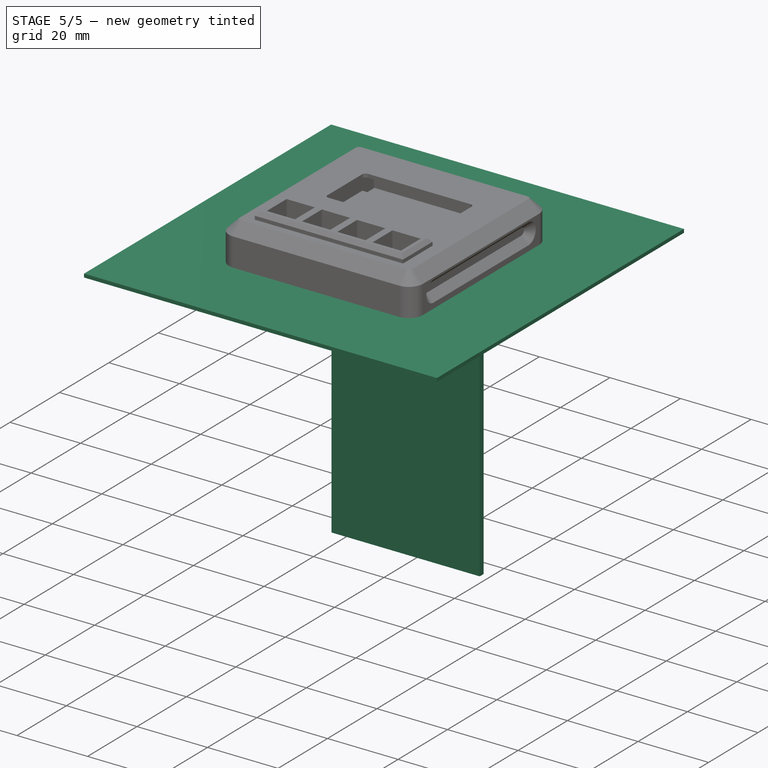
[diagram: stage 5 of 5 — iso view after this stage's code; geometry added in this stage tinted green]
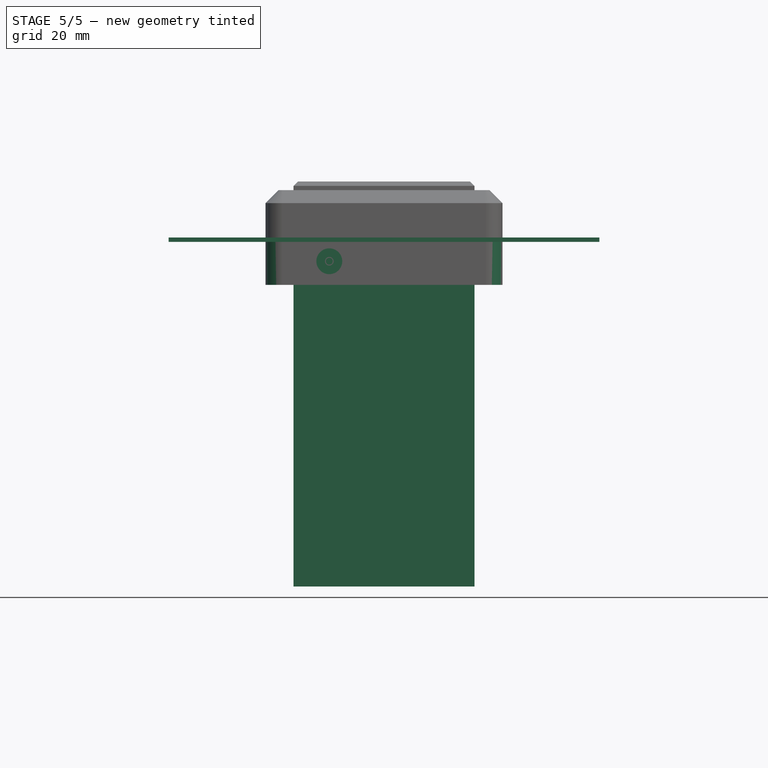
[diagram: stage 5 of 5 — front view after this stage's code; geometry added in this stage tinted green]
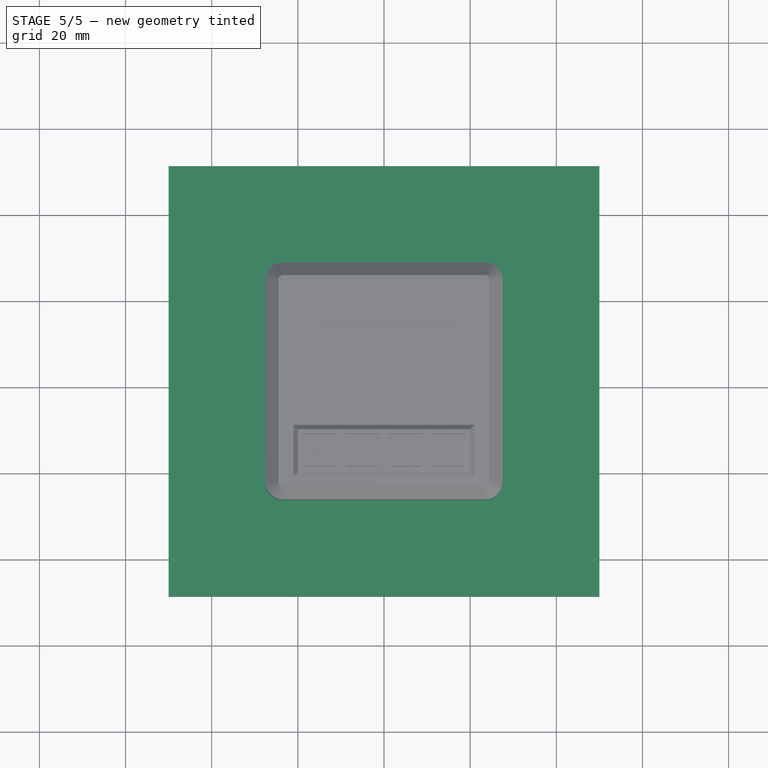
[diagram: stage 5 of 5 — top view after this stage's code; geometry added in this stage tinted green]
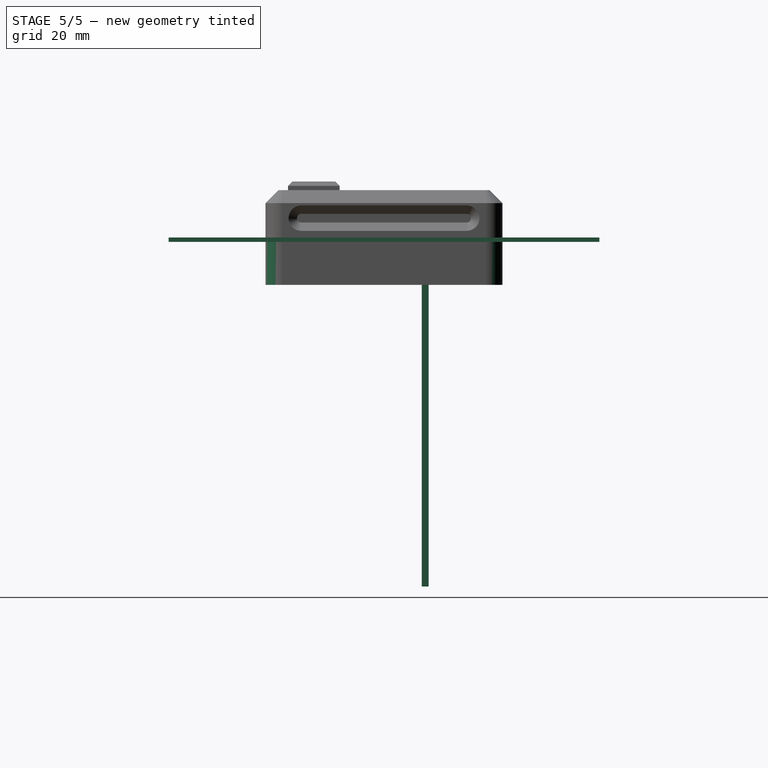
[diagram: stage 5 of 5 — right view after this stage's code; geometry added in this stage tinted green]
FEATURE [Sketcher::SketchObject] Sketch
  MapMode = 5
  Support = -> [XY_Plane]
  sketch-geometry (4):
    g0: LineSegment StartX=-50 StartY=50 StartZ=0 EndX=50 EndY=50 EndZ=0
    g1: LineSegment StartX=50 StartY=50 StartZ=0 EndX=50 EndY=-50 EndZ=0
    g2: LineSegment StartX=50 StartY=-50 StartZ=0 EndX=-50 EndY=-50 EndZ=0
    g3: LineSegment StartX=-50 StartY=-50 StartZ=0 EndX=-50 EndY=50 EndZ=0
  constraints (11):
    c: Coincident(g0,g1)
    c: Coincident(g1,g2)
    c: Coincident(g2,g3)
    c: Coincident(g3,g0)
    c: Horizontal(g0)
    c: Horizontal(g2)
    c: Vertical(g1)
    c: Vertical(g3)
    c: Symmetric(g0,g1,g-1)
    c: DistanceX(g0,g0) = 100
    c: DistanceY(g3,g3) = 100
FEATURE [PartDesign::Pad] Pad
  Length = 1
  Length2 = 100
  Profile = -> Sketch
  Type = 0
FEATURE [Sketcher::SketchObject] Sketch001
  MapMode = 5
  Placement = pos=(0,0,1) rot=(0,0,1;0rad)
  Support = -> [Pad]
  sketch-geometry (4):
    g0: LineSegment StartX=-22.5 StartY=22.5 StartZ=0 EndX=22.5 EndY=22.5 EndZ=0
    g1: LineSegment StartX=22.5 StartY=22.5 StartZ=0 EndX=22.5 EndY=-22.5 EndZ=0
    g2: LineSegment StartX=22.5 StartY=-22.5 StartZ=0 EndX=-22.5 EndY=-22.5 EndZ=0
    g3: LineSegment StartX=-22.5 StartY=-22.5 StartZ=0 EndX=-22.5 EndY=22.5 EndZ=0
  constraints (11):
    c: Coincident(g0,g1)
    c: Coincident(g1,g2)
    c: Coincident(g2,g3)
    c: Coincident(g3,g0)
    c: Horizontal(g0)
    c: Horizontal(g2)
    c: Vertical(g1)
    c: Vertical(g3)
    c: DistanceX(g0,g0) = 45
    c: Equal(g1,g0)
    c: Symmetric(g0,g1,g-1)
FEATURE [PartDesign::Pocket] Pocket
  BaseFeature = -> Pad
  Length = 5
  Length2 = 100
  Profile = -> Sketch001
  Type = 1
FEATURE [PartDesign::Body] Body  label="furnacepanel"
  Group = -> [Sketch,Pad,Sketch001,Pocket]
  Origin = -> Origin
  Tip = -> Pocket
FEATURE [Sketcher::SketchObject] Sketch002
  MapMode = 5
  Support = -> [XY_Plane001]
  sketch-geometry (8):
    g0: LineSegment StartX=-21 StartY=10.35 StartZ=0 EndX=21 EndY=10.35 EndZ=0
    g1: LineSegment StartX=21 StartY=10.35 StartZ=0 EndX=21 EndY=8.75 EndZ=0
    g2: LineSegment StartX=21 StartY=8.75 StartZ=0 EndX=-21 EndY=8.75 EndZ=0
    g3: LineSegment StartX=-21 StartY=8.75 StartZ=0 EndX=-21 EndY=10.35 EndZ=0
    g4: LineSegment [constr] StartX=-22.5 StartY=22.5 StartZ=0 EndX=22.5 EndY=22.5 EndZ=0
    g5: LineSegment [constr] StartX=22.5 StartY=22.5 StartZ=0 EndX=22.5 EndY=-22.5 EndZ=0
    g6: LineSegment [constr] StartX=22.5 StartY=-22.5 StartZ=0 EndX=-22.5 EndY=-22.5 EndZ=0
    g7: LineSegment [constr] StartX=-22.5 StartY=-22.5 StartZ=0 EndX=-22.5 EndY=22.5 EndZ=0
  constraints (22):
    c: Coincident(g0,g1)
    c: Coincident(g1,g2)
    c: Coincident(g2,g3)
    c: Coincident(g3,g0)
    c: Horizontal(g2)
    c: Vertical(g1)
    c: Vertical(g3)
    c: DistanceX(g0,g0) = 42
    c: DistanceY(g3,g3) = 1.6
    c: Coincident(g4,g5)
    c: Coincident(g5,g6)
    c: Coincident(g6,g7)
    c: Coincident(g7,g4)
    c: Horizontal(g4)
    c: Horizontal(g6)
    c: Vertical(g5)
    c: Vertical(g7)
    c: DistanceY(g0,g4) = 12.15
    c: Symmetric(g4,g5,g-1)
    c: Equal(g4,g7)
    c: DistanceX(g4,g4) = 45
    c: Symmetric(g0,g0,g-2)
FEATURE [PartDesign::Pad] Pad001
  Length = 80
  Length2 = 100
  Profile = -> Sketch002
  Reversed = true
  Type = 0
FEATURE [Sketcher::SketchObject] Sketch003
  ExternalGeometry = -> [Pad001]
  MapMode = 5
  Placement = pos=(0,10.35,0) rot=(0,0.707107,0.707107;3.14159rad)
  Support = -> [Pad001]
  sketch-geometry (1):
    g0: Circle CenterX=12.7 CenterY=-4.5 CenterZ=0 NormalX=0 NormalY=0 NormalZ=1 AngleXU=0 Radius=1
  constraints (3):
    c: DistanceX(g0,g-3) = 8.3
    c: DistanceY(g0,g-3) = 4.5
    c: Radius(g0) = 1
FEATURE [PartDesign::Pocket] Pocket001
  BaseFeature = -> Pad001
  Length = 5
  Length2 = 100
  Profile = -> Sketch003
  Type = 1
FEATURE [Sketcher::SketchObject] Sketch008
  ExternalGeometry = -> [Pad003]
  MapMode = 5
  Placement = pos=(0,0,-5) rot=(0,0,1;0rad)
  Support = -> [Pad003]
  sketch-geometry (1):
    g0: Circle CenterX=-20 CenterY=20 CenterZ=0 NormalX=0 NormalY=0 NormalZ=1 AngleXU=0 Radius=0.8
  constraints (2):
    c: Coincident(g-3,g0)
    c: Radius(g0) = 0.8
FEATURE [PartDesign::Pocket] Pocket004
  BaseFeature = -> Pad003
  Length = 5
  Length2 = 100
  Profile = -> Sketch008
  Type = 0
FEATURE [Sketcher::SketchObject] Sketch009
  ExternalGeometry = -> [Pocket004]
  MapMode = 5
  Placement = pos=(0,-27.5,0) rot=(1,0,0;1.5708rad)
  Support = -> [Pocket004]
  sketch-geometry (1):
    g0: Circle CenterX=-12.7 CenterY=-4.5 CenterZ=0 NormalX=0 NormalY=0 NormalZ=1 AngleXU=0 Radius=3
  constraints (2):
    c: Coincident(g-3,g0)
    c: Equal(g0,g-3)
FEATURE [PartDesign::Pocket] Pocket005
  BaseFeature = -> Pocket004
  Length = 5
  Length2 = 100
  Profile = -> Sketch009
  Type = 0
FEATURE [PartDesign::Fillet] Fillet
  Base = -> Pocket005 [Edge1,Edge5,Edge8,Edge2]
  BaseFeature = -> Pocket005
  Radius = 4
FEATURE [PartDesign::Fillet] Fillet001
  Base = -> Fillet [Edge96,Edge101,Edge103,Edge107,Edge117,Edge120,Edge121,Edge108,Edge91,Edge105,Edge122,Edge118,Edge114,Edge95,Edge94,Edge92,Edge110,Edge93,Edge112,Edge116]
  BaseFeature = -> Fillet
  Radius = 1
FEATURE [Sketcher::SketchObject] Sketch010
  ExternalGeometry = -> [Fillet001]
  MapMode = 5
  Placement = pos=(0,10.4,-5.8e-15) rot=(1,0,0;1.5708rad)
  Support = -> [Fillet001]
  sketch-geometry (1):
    g0: Circle CenterX=-12.7 CenterY=-4.5 CenterZ=0 NormalX=0 NormalY=0 NormalZ=1 AngleXU=0 Radius=0.8
  constraints (2):
    c: Coincident(g0,g-3)
    c: Radius(g0) = 0.8
FEATURE [PartDesign::Pocket] Pocket006
  BaseFeature = -> Fillet001
  Length = 5
  Length2 = 100
  Profile = -> Sketch010
  Type = 0
FEATURE [PartDesign::Chamfer] Chamfer
  Base = -> Pocket006 [Edge134,Edge126,Edge130,Edge101,Edge97,Edge93]
  BaseFeature = -> Pocket006
  Size = 1
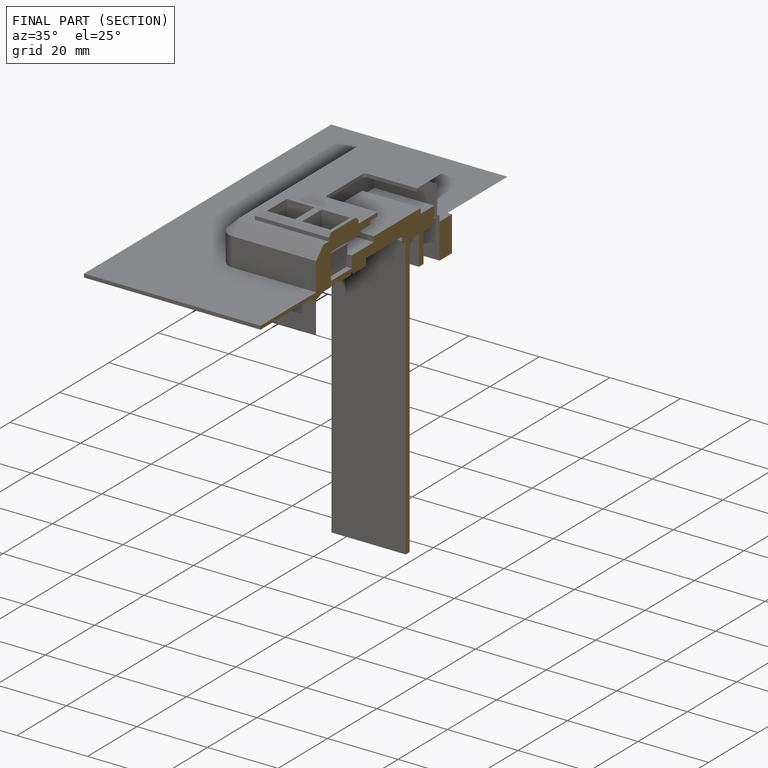
[diagram: finished part — half-section view (interior)]
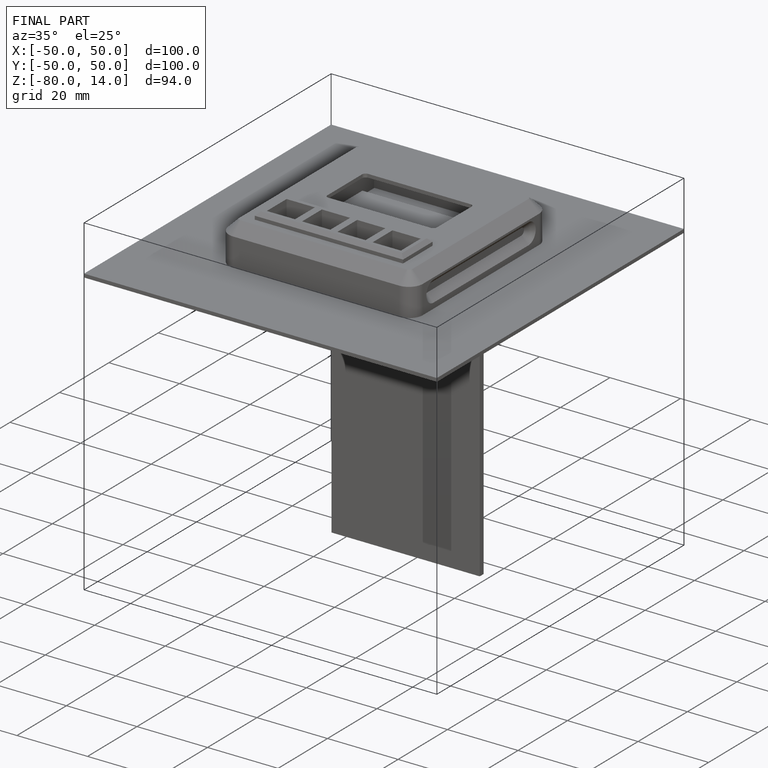
[diagram: finished part — iso view with bounding-box wireframe]
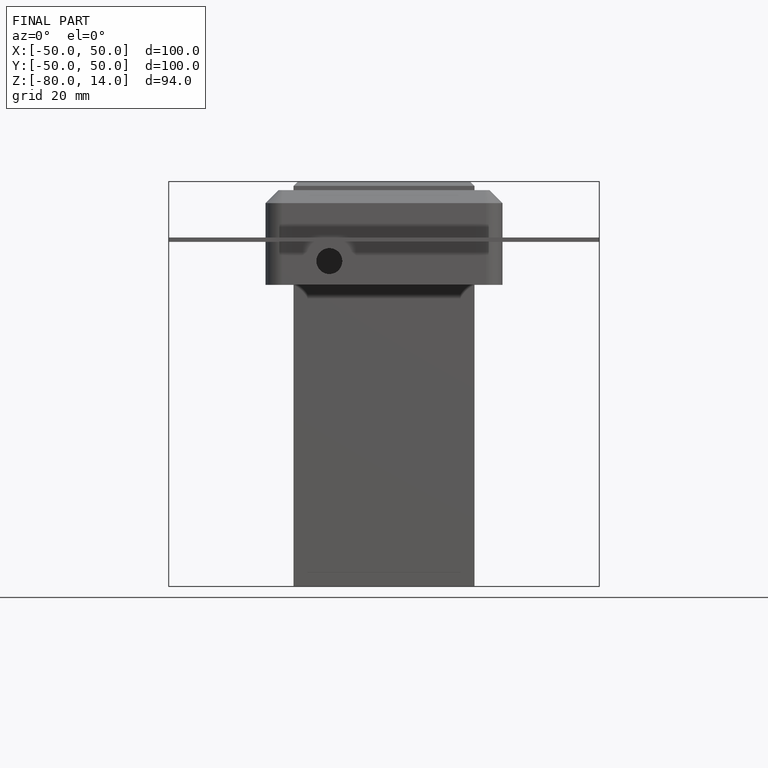
[diagram: finished part — front view with bounding-box wireframe]
